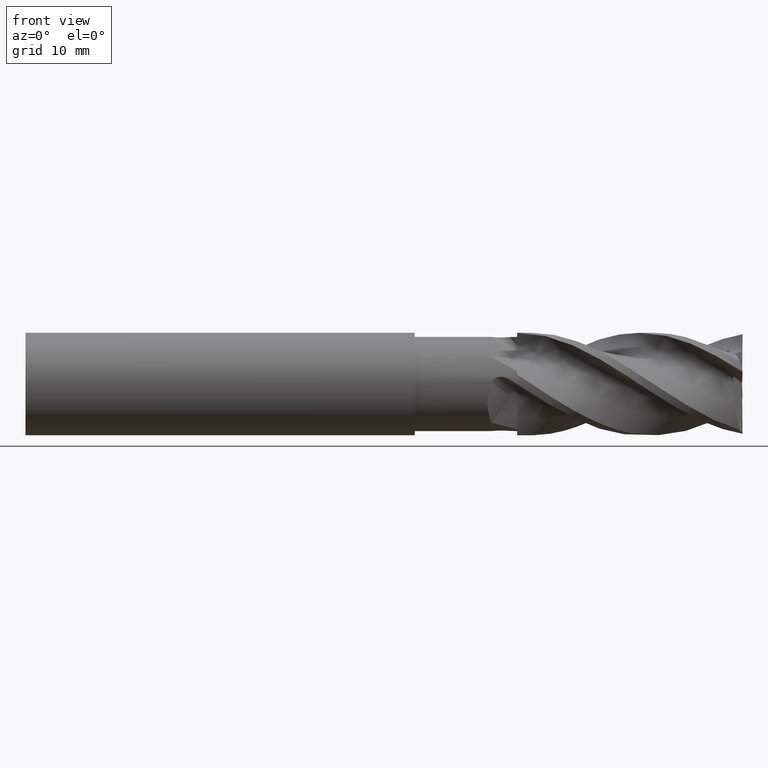
[diagram: clean part render]
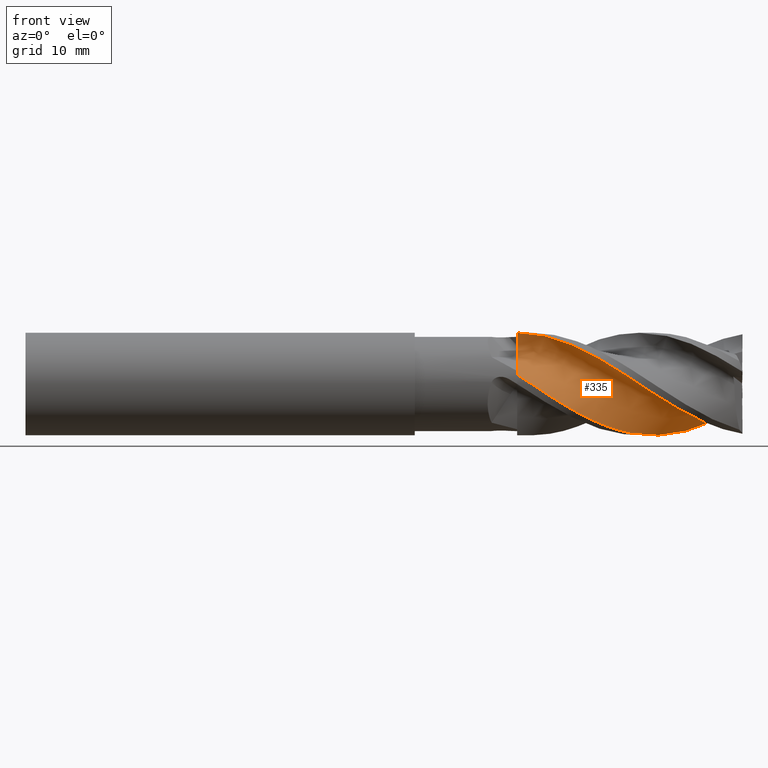
[diagram: same view with one face highlighted and labeled with its STEP entity id]
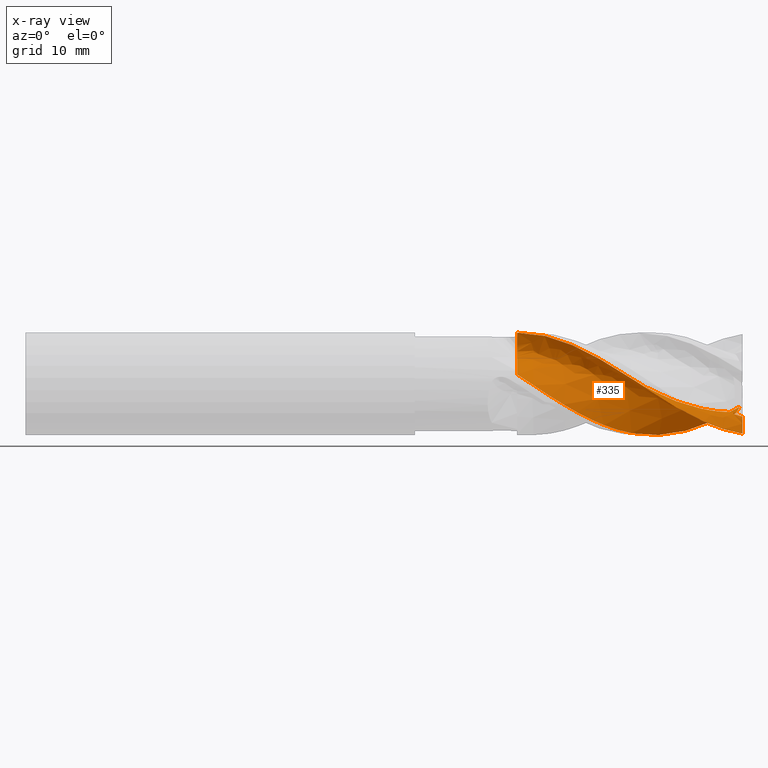
[diagram: x-ray of the same camera — body ghosted, the highlighted face saturated]
A machine part, front view. The second image highlights one B-rep face of the part: STEP entity #335.
The next image is the same camera in x-ray: the body ghosted, the highlighted face saturated — about 0% of this face is hidden behind the body in this view.
In plain terms, the highlighted face is a freeform B-spline surface patch.
Its self-contained STEP definition (entity closure, byte-faithful):
#17 = FACE_OUTER_BOUND ( 'NONE', #6236, .T. ) ;
#157 = EDGE_CURVE ( 'NONE', #3954, #3936, #2111, .T. ) ;
#163 = EDGE_CURVE ( 'NONE', #3817, #3836, #2107, .T. ) ;
#192 = EDGE_CURVE ( 'NONE', #3836, #3816, #284, .T. ) ;
#197 = EDGE_CURVE ( 'NONE', #3816, #3908, #283, .T. ) ;
#210 = EDGE_CURVE ( 'NONE', #3908, #3954, #279, .T. ) ;
#214 = EDGE_CURVE ( 'NONE', #3936, #3932, #234, .T. ) ;
#234 = B_SPLINE_CURVE_WITH_KNOTS ( 'NONE', 3,
 ( #1085, #1091, #1092, #1093, #1094, #1095, #1096, #1097, #1098, #1099, #1100, #1101, #1102, #1103, #1104, #1105, #1106, #1107, #1108, #1109, #1110, #1111, #1112, #1113, #1114, #1115, #1116, #1117, #1118, #1119, #1120, #1121, #1122, #1123, #1124, #1125, #1126, #1127, #1128, #1129, #1130, #1131, #1132, #1133, #1134, #1135 ),
 .UNSPECIFIED., .F., .F.,
 ( 4, 2, 2, 2, 2, 2, 2, 2, 2, 2, 2, 2, 2, 2, 2, 2, 2, 2, 2, 2, 2, 2, 4 ),
 ( 0.0003517343773315553600, 0.001971456536927024000, 0.002781317616724762600, 0.003591178696522501600, 0.005210900856117969100, 0.006830623015713438400, 0.007640484095511176600, 0.008450345175308916400, 0.01007006733490439300, 0.01168978949449987200, 0.01330951165409534900, 0.01411937273389309200, 0.01492923381369083400, 0.01654895597328632700, 0.01816867813288182100, 0.01897853921267957100, 0.01978840029247731800, 0.02140812245207282200, 0.02221798353187057200, 0.02302784461166832200, 0.02464756677126382300, 0.02545742785106157300, 0.02626728893085932300 ),
 .UNSPECIFIED. ) ;
#267 = B_SPLINE_CURVE_WITH_KNOTS ( 'NONE', 3,
 ( #3377, #3390, #3391, #3392 ),
 .UNSPECIFIED., .F., .F.,
 ( 4, 4 ),
 ( 0.0000000000000000000, 1.000000000000000000 ),
 .UNSPECIFIED. ) ;
#279 = B_SPLINE_CURVE_WITH_KNOTS ( 'NONE', 3,
 ( #1076, #1079, #1080, #1081, #1082, #1083 ),
 .UNSPECIFIED., .F., .F.,
 ( 4, 2, 4 ),
 ( 0.002107904890340311300, 0.002580822204645791600, 0.003053739518951271900 ),
 .UNSPECIFIED. ) ;
#283 = B_SPLINE_CURVE_WITH_KNOTS ( 'NONE', 3,
 ( #992, #1003, #1004, #1005, #1006, #1007, #1008, #1009 ),
 .UNSPECIFIED., .F., .F.,
 ( 4, 2, 2, 4 ),
 ( 0.0000000000000000000, 0.0001966645773995174000, 0.0003933291547990348000, 0.0007866583095980685100 ),
 .UNSPECIFIED. ) ;
#284 = B_SPLINE_CURVE_WITH_KNOTS ( 'NONE', 3,
 ( #981, #997, #998, #999 ),
 .UNSPECIFIED., .F., .F.,
 ( 4, 4 ),
 ( 0.0002117796649037390200, 0.001211780483113919500 ),
 .UNSPECIFIED. ) ;
#335 = ADVANCED_FACE ( 'NONE', ( #17 ), #6040, .F. ) ;
#367 = B_SPLINE_CURVE_WITH_KNOTS ( 'NONE', 3,
 ( #4146, #4139, #4147, #4148, #4149, #4150, #4151, #4152, #4153, #4154, #4155, #4156, #4157, #4158, #4159, #4160, #4161, #4162, #4163, #4164, #4165, #4166 ),
 .UNSPECIFIED., .F., .F.,
 ( 4, 2, 2, 2, 2, 2, 2, 2, 2, 2, 4 ),
 ( 0.0001837650418652731700, 0.001687539857454824200, 0.003191314673044375200, 0.003943202080839150300, 0.004131173932787844500, 0.004319145784736537800, 0.004695089488633925400, 0.005071033192531312000, 0.005446976896428699600, 0.005822920600326087100, 0.006198864304223472900 ),
 .UNSPECIFIED. ) ;
#376 = EDGE_CURVE ( 'NONE', #3872, #3975, #267, .T. ) ;
#388 = EDGE_CURVE ( 'NONE', #3975, #3817, #550, .T. ) ;
#489 = EDGE_CURVE ( 'NONE', #3932, #3872, #367, .T. ) ;
#544 = VECTOR ( 'NONE', #3530, 1000.000000000000000 ) ;
#550 = LINE ( 'NONE', #3523, #544 ) ;
#827 = CARTESIAN_POINT ( 'NONE',  ( 29.53202579724229800, 3.661732787132276000, -2.599412507541605200 ) ) ;
#829 = CARTESIAN_POINT ( 'NONE',  ( 29.14819960330811500, -0.5156279703887887100, -2.825648782203691800 ) ) ;
#836 = CARTESIAN_POINT ( 'NONE',  ( 29.22279968464167500, 0.4788628015509080500, -2.826721369743600200 ) ) ;
#837 = CARTESIAN_POINT ( 'NONE',  ( 29.22029806625578600, 0.3683621686598236300, -2.807651915230946900 ) ) ;
#838 = CARTESIAN_POINT ( 'NONE',  ( 29.21956920481822800, 0.3131933655722713400, -2.796428231691191700 ) ) ;
#839 = CARTESIAN_POINT ( 'NONE',  ( 29.21559518722241900, 0.1473982650252503000, -2.768538732105728400 ) ) ;
#840 = CARTESIAN_POINT ( 'NONE',  ( 29.10649564881543200, -0.7184389477193928700, -2.912170294004740700 ) ) ;
#842 = CARTESIAN_POINT ( 'NONE',  ( 29.20896061224108200, 0.03622377020097193600, -2.762835988063497600 ) ) ;
#843 = CARTESIAN_POINT ( 'NONE',  ( 29.70262055360497300, 4.470051940391925900, -2.240231159991868300 ) ) ;
#844 = CARTESIAN_POINT ( 'NONE',  ( 29.17947649600156600, -0.2988489022850536700, -2.776715602531313600 ) ) ;
#845 = CARTESIAN_POINT ( 'NONE',  ( 29.61213824113422200, 4.077486310967127100, -2.439659636211278600 ) ) ;
#849 = CARTESIAN_POINT ( 'NONE',  ( 8.000000000000008900, -3.371984881935656000E-014, 5.000000000000012400 ) ) ;
#850 = CARTESIAN_POINT ( 'NONE',  ( 29.39875094498130900, 2.808896841948894000, -2.825411162788335600 ) ) ;
#852 = CARTESIAN_POINT ( 'NONE',  ( 29.26483299823841100, 1.476304363146129700, -2.935158553078828900 ) ) ;
#853 = CARTESIAN_POINT ( 'NONE',  ( 29.34503719943275300, 2.369362949060010800, -2.892857461720182800 ) ) ;
#854 = CARTESIAN_POINT ( 'NONE',  ( 29.23900850321801300, 1.031922601908282100, -2.910088305722451800 ) ) ;
#855 = CARTESIAN_POINT ( 'NONE',  ( 29.22424012979953300, 0.5341416416342221800, -2.835642189812225500 ) ) ;
#866 = CARTESIAN_POINT ( 'NONE',  ( 8.461864575454862700, -0.3043825993731016900, 5.000000000000014200 ) ) ;
#867 = CARTESIAN_POINT ( 'NONE',  ( 8.922054463733291000, -0.6076564736293985600, 4.972223425805575300 ) ) ;
#868 = CARTESIAN_POINT ( 'NONE',  ( 9.843687160313590900, -1.205053677508986200, 4.862108371930381700 ) ) ;
#869 = CARTESIAN_POINT ( 'NONE',  ( 10.30608116422774000, -1.499670722333178200, 4.779373170893421700 ) ) ;
#870 = CARTESIAN_POINT ( 'NONE',  ( 11.68272013544947000, -2.347167751989157400, 4.456061520259615000 ) ) ;
#871 = CARTESIAN_POINT ( 'NONE',  ( 12.59217818241571500, -2.868169310038100500, 4.140129657312584800 ) ) ;
#872 = CARTESIAN_POINT ( 'NONE',  ( 13.97108916368798300, -3.547529685883755500, 3.536495485699726200 ) ) ;
#873 = CARTESIAN_POINT ( 'NONE',  ( 14.43386782584690300, -3.756907204011370900, 3.313115801036115500 ) ) ;
#874 = CARTESIAN_POINT ( 'NONE',  ( 15.34979826617298200, -4.128147734108597300, 2.837161316527805300 ) ) ;
#875 = CARTESIAN_POINT ( 'NONE',  ( 15.80531174916690400, -4.291270519727669700, 2.583614918138900800 ) ) ;
#876 = CARTESIAN_POINT ( 'NONE',  ( 16.71601393055794600, -4.569499520939866800, 2.051765787521561800 ) ) ;
#877 = CARTESIAN_POINT ( 'NONE',  ( 17.17121222556654200, -4.684606274118006100, 1.773479893612733400 ) ) ;
#878 = CARTESIAN_POINT ( 'NONE',  ( 18.08567430667012500, -4.863661972111706300, 1.198148195169895600 ) ) ;
#879 = CARTESIAN_POINT ( 'NONE',  ( 18.54714702253915300, -4.927761787656241000, 0.8995636430977205200 ) ) ;
#880 = CARTESIAN_POINT ( 'NONE',  ( 19.92806106089716800, -5.036684145877382300, -0.004092693510939836100 ) ) ;
#881 = CARTESIAN_POINT ( 'NONE',  ( 20.83538127513917400, -4.998837118898118000, -0.6105243224921189600 ) ) ;
#882 = CARTESIAN_POINT ( 'NONE',  ( 22.20299102311084000, -4.783573889921260800, -1.485832750369553400 ) ) ;
#883 = CARTESIAN_POINT ( 'NONE',  ( 22.65995323776136100, -4.685344727084984800, -1.771889732561642100 ) ) ;
#884 = CARTESIAN_POINT ( 'NONE',  ( 23.58073770741850700, -4.436724948236133900, -2.325407527656068000 ) ) ;
#885 = CARTESIAN_POINT ( 'NONE',  ( 24.04214820329081800, -4.286742064648464600, -2.591257220826266700 ) ) ;
#886 = CARTESIAN_POINT ( 'NONE',  ( 25.41362563098745400, -3.773490698048687500, -3.335244219691120700 ) ) ;
#887 = CARTESIAN_POINT ( 'NONE',  ( 26.31981726979738300, -3.344846162727712600, -3.765143692553069200 ) ) ;
#888 = CARTESIAN_POINT ( 'NONE',  ( 27.69375705382108800, -2.600812016685304200, -4.280987336273847500 ) ) ;
#889 = CARTESIAN_POINT ( 'NONE',  ( 28.15592773137319300, -2.334728643893836600, -4.431856551753244700 ) ) ;
#890 = CARTESIAN_POINT ( 'NONE',  ( 29.07784489066638000, -1.780926359666860300, -4.681945283467143800 ) ) ;
#891 = CARTESIAN_POINT ( 'NONE',  ( 29.53811105400377500, -1.493092354050963500, -4.781558524981798900 ) ) ;
#892 = CARTESIAN_POINT ( 'NONE',  ( 30.00000000000001400, -1.197605160818747500, -4.854455878755151100 ) ) ;
#981 = CARTESIAN_POINT ( 'NONE',  ( 30.00000000000001400, -1.197605160818747500, -4.854455878755151100 ) ) ;
#992 = CARTESIAN_POINT ( 'NONE',  ( 30.00000000000000000, -0.9568265954257032500, -3.883874723299680600 ) ) ;
#997 = CARTESIAN_POINT ( 'NONE',  ( 30.00000000000001400, -1.117319388118230000, -4.530935419044469700 ) ) ;
#998 = CARTESIAN_POINT ( 'NONE',  ( 30.00000000000002100, -1.037059909437045800, -4.207408835632827900 ) ) ;
#999 = CARTESIAN_POINT ( 'NONE',  ( 30.00000000000000000, -0.9568265954257032500, -3.883874723299680600 ) ) ;
#1003 = CARTESIAN_POINT ( 'NONE',  ( 29.99942241917573300, -0.9411936024851828000, -3.819562977336174100 ) ) ;
#1004 = CARTESIAN_POINT ( 'NONE',  ( 29.99884407677340500, -0.9261632584989054600, -3.755012776181186200 ) ) ;
#1005 = CARTESIAN_POINT ( 'NONE',  ( 29.99769067858569100, -0.8935025274083511200, -3.626941154839270700 ) ) ;
#1006 = CARTESIAN_POINT ( 'NONE',  ( 29.99712138532720100, -0.8712077054301919900, -3.565265352141156800 ) ) ;
#1007 = CARTESIAN_POINT ( 'NONE',  ( 29.99543598172812900, -0.7883212297197270700, -3.386569573208681600 ) ) ;
#1008 = CARTESIAN_POINT ( 'NONE',  ( 29.99432084400001100, -0.7097979021696738700, -3.273951488216468000 ) ) ;
#1009 = CARTESIAN_POINT ( 'NONE',  ( 29.99334330137063300, -0.6175835380554208800, -3.177761828581082700 ) ) ;
#1076 = CARTESIAN_POINT ( 'NONE',  ( 29.99334330137063300, -0.6175835380554208800, -3.177761828581082700 ) ) ;
#1079 = CARTESIAN_POINT ( 'NONE',  ( 29.85027689470425100, -0.6302829989809688400, -3.116251548896186400 ) ) ;
#1080 = CARTESIAN_POINT ( 'NONE',  ( 29.70229058075442900, -0.6461268331281726500, -3.066780212829367500 ) ) ;
#1081 = CARTESIAN_POINT ( 'NONE',  ( 29.40595697189806400, -0.6804249385796952200, -2.981160866803722200 ) ) ;
#1082 = CARTESIAN_POINT ( 'NONE',  ( 29.25657559087708000, -0.6990169778810044800, -2.944808599188861700 ) ) ;
#1083 = CARTESIAN_POINT ( 'NONE',  ( 29.10649564881543200, -0.7184389477193928700, -2.912170294004740700 ) ) ;
#1085 = CARTESIAN_POINT ( 'NONE',  ( 29.70262055360497300, 4.470051940391925900, -2.240231159991868300 ) ) ;
#1091 = CARTESIAN_POINT ( 'NONE',  ( 29.24761314425728300, 4.335948932697840000, -2.507813997183340000 ) ) ;
#1092 = CARTESIAN_POINT ( 'NONE',  ( 28.79898912238062200, 4.175907958121836600, -2.766186038056455100 ) ) ;
#1093 = CARTESIAN_POINT ( 'NONE',  ( 28.12504294792146500, 3.905387402832711400, -3.125771481051779200 ) ) ;
#1094 = CARTESIAN_POINT ( 'NONE',  ( 27.90020835360591500, 3.810216698315571600, -3.241003418133894300 ) ) ;
#1095 = CARTESIAN_POINT ( 'NONE',  ( 27.44837079236631900, 3.612078053737106700, -3.460454677956232000 ) ) ;
#1096 = CARTESIAN_POINT ( 'NONE',  ( 27.22046573787833200, 3.510158961587681100, -3.563747629633091200 ) ) ;
#1097 = CARTESIAN_POINT ( 'NONE',  ( 26.53860979875888800, 3.187750359161404000, -3.863198164860950800 ) ) ;
#1098 = CARTESIAN_POINT ( 'NONE',  ( 26.08625958248842700, 2.948179551604636700, -4.049741124438545700 ) ) ;
#1099 = CARTESIAN_POINT ( 'NONE',  ( 25.17970728134009000, 2.436546462801039600, -4.376689065729964400 ) ) ;
#1100 = CARTESIAN_POINT ( 'NONE',  ( 24.73016973765081200, 2.167636822457107200, -4.515211826651996500 ) ) ;
#1101 = CARTESIAN_POINT ( 'NONE',  ( 24.05050286752110700, 1.761130093702830000, -4.681865824802849300 ) ) ;
#1102 = CARTESIAN_POINT ( 'NONE',  ( 23.82309570815909100, 1.625111835638603200, -4.730824382099791100 ) ) ;
#1103 = CARTESIAN_POINT ( 'NONE',  ( 23.37217736477623800, 1.343856929157526400, -4.818271097246173100 ) ) ;
#1104 = CARTESIAN_POINT ( 'NONE',  ( 23.14777720721490100, 1.199882456250143600, -4.856196248305790800 ) ) ;
#1105 = CARTESIAN_POINT ( 'NONE',  ( 22.47527461795936100, 0.7613602198664432000, -4.950734315140426400 ) ) ;
#1106 = CARTESIAN_POINT ( 'NONE',  ( 22.02786824595716900, 0.4601173499505135100, -4.987761707469058300 ) ) ;
#1107 = CARTESIAN_POINT ( 'NONE',  ( 21.12045886986742000, -0.1378187101107820300, -5.007043122379070800 ) ) ;
#1108 = CARTESIAN_POINT ( 'NONE',  ( 20.65758738936245800, -0.4303519144070425700, -4.990351430592168600 ) ) ;
#1109 = CARTESIAN_POINT ( 'NONE',  ( 19.75310773932774900, -1.020069984137365300, -4.903903281928498900 ) ) ;
#1110 = CARTESIAN_POINT ( 'NONE',  ( 19.30635203298269100, -1.314312046518187700, -4.833410387285445300 ) ) ;
#1111 = CARTESIAN_POINT ( 'NONE',  ( 18.63408142059168800, -1.738999959494917900, -4.690223573856816800 ) ) ;
#1112 = CARTESIAN_POINT ( 'NONE',  ( 18.40961925141818200, -1.877786810146493200, -4.636336543735889200 ) ) ;
#1113 = CARTESIAN_POINT ( 'NONE',  ( 17.95820744396802800, -2.147481972114432500, -4.517745126784434200 ) ) ;
#1114 = CARTESIAN_POINT ( 'NONE',  ( 17.73037837373991400, -2.277203116929114000, -4.453758495477012000 ) ) ;
#1115 = CARTESIAN_POINT ( 'NONE',  ( 17.04973137020134600, -2.663871413022870400, -4.241493154777026000 ) ) ;
#1116 = CARTESIAN_POINT ( 'NONE',  ( 16.59660447856522900, -2.917728391303814100, -4.071728183786157200 ) ) ;
#1117 = CARTESIAN_POINT ( 'NONE',  ( 15.69201377842810500, -3.388792872452818500, -3.688928331598738000 ) ) ;
#1118 = CARTESIAN_POINT ( 'NONE',  ( 15.24292448220645100, -3.604493661132237600, -3.477468488572880400 ) ) ;
#1119 = CARTESIAN_POINT ( 'NONE',  ( 14.56283012907767500, -3.889548092664613300, -3.145267245464072700 ) ) ;
#1120 = CARTESIAN_POINT ( 'NONE',  ( 14.33563046441807700, -3.978912424228823400, -3.031485073546563000 ) ) ;
#1121 = CARTESIAN_POINT ( 'NONE',  ( 13.88464188260380500, -4.150277067048135900, -2.792283312551294900 ) ) ;
#1122 = CARTESIAN_POINT ( 'NONE',  ( 13.66004469311948500, -4.231443182424797600, -2.667799168494436700 ) ) ;
#1123 = CARTESIAN_POINT ( 'NONE',  ( 12.98664249912885900, -4.458774149756324700, -2.282189369771909800 ) ) ;
#1124 = CARTESIAN_POINT ( 'NONE',  ( 12.53822369664005600, -4.588503973317751100, -2.008723230005581500 ) ) ;
#1125 = CARTESIAN_POINT ( 'NONE',  ( 11.85632511285503400, -4.743473299705435400, -1.588016211176986700 ) ) ;
#1126 = CARTESIAN_POINT ( 'NONE',  ( 11.62647733790183200, -4.788422657927847900, -1.446633257882447900 ) ) ;
#1127 = CARTESIAN_POINT ( 'NONE',  ( 11.16855281787598700, -4.865346171773704300, -1.161957814455995200 ) ) ;
#1128 = CARTESIAN_POINT ( 'NONE',  ( 10.94161111878101500, -4.897957804298026300, -1.016160452747566500 ) ) ;
#1129 = CARTESIAN_POINT ( 'NONE',  ( 10.26423591096618200, -4.976222020854446100, -0.5722807639696090300 ) ) ;
#1130 = CARTESIAN_POINT ( 'NONE',  ( 9.817288185391374700, -5.001904955811579800, -0.2676314969799499200 ) ) ;
#1131 = CARTESIAN_POINT ( 'NONE',  ( 9.141787467861465900, -4.998879256825858900, 0.1840546847089367700 ) ) ;
#1132 = CARTESIAN_POINT ( 'NONE',  ( 8.915758711235430000, -4.991042768886047500, 0.3337060176299402300 ) ) ;
#1133 = CARTESIAN_POINT ( 'NONE',  ( 8.459996292622816900, -4.962597282450115400, 0.6280890376935720500 ) ) ;
#1134 = CARTESIAN_POINT ( 'NONE',  ( 8.229496249998272000, -4.942317576961959200, 0.7716230165415882700 ) ) ;
#1135 = CARTESIAN_POINT ( 'NONE',  ( 8.000000000000007100, -4.915170262287604800, 0.9171157466338413200 ) ) ;
#2107 = B_SPLINE_CURVE_WITH_KNOTS ( 'NONE', 3,
 ( #849, #866, #867, #868, #869, #870, #871, #872, #873, #874, #875, #876, #877, #878, #879, #880, #881, #882, #883, #884, #885, #886, #887, #888, #889, #890, #891, #892 ),
 .UNSPECIFIED., .F., .F.,
 ( 4, 2, 2, 2, 2, 2, 2, 2, 2, 2, 2, 2, 2, 4 ),
 ( 0.0000000000000000000, 0.001655086336224903700, 0.003310172672449807300, 0.006620345344899612000, 0.008275431681124514200, 0.009930518017349414600, 0.01158560435357431800, 0.01324069068979922100, 0.01655086336224902500, 0.01820594969847392400, 0.01986103603469881900, 0.02317120870714860900, 0.02482629504337349400, 0.02648138137959838200 ),
 .UNSPECIFIED. ) ;
#2111 = B_SPLINE_CURVE_WITH_KNOTS ( 'NONE', 3,
 ( #840, #829, #844, #842, #839, #838, #837, #836, #855, #854, #852, #853, #850, #827, #845, #843 ),
 .UNSPECIFIED., .F., .F.,
 ( 4, 2, 2, 2, 2, 2, 2, 4 ),
 ( 0.002293712214768969800, 0.002953628090643745400, 0.003283586028581133800, 0.003448564997549827800, 0.003613543966518521800, 0.004933375718268073800, 0.006253207470017624900, 0.007573039221767177700 ),
 .UNSPECIFIED. ) ;
#3377 = CARTESIAN_POINT ( 'NONE',  ( 8.000000000000008900, -2.490271337872778900E-014, 3.812500000000007100 ) ) ;
#3390 = CARTESIAN_POINT ( 'NONE',  ( 8.000000000000007100, -2.746645503629944700E-014, 4.076975000000007100 ) ) ;
#3391 = CARTESIAN_POINT ( 'NONE',  ( 8.000000000000007100, -2.977941967093519100E-014, 4.341450000000007100 ) ) ;
#3392 = CARTESIAN_POINT ( 'NONE',  ( 8.000000000000007100, -3.003476571920607700E-014, 4.605184375000007400 ) ) ;
#3523 = CARTESIAN_POINT ( 'NONE',  ( 8.000000000000007100, -3.509248205846706300E-014, 5.000000000000013300 ) ) ;
#3530 = DIRECTION ( 'NONE',  ( -1.460819769243619800E-015, -8.638014195045787200E-015, 1.000000000000000000 ) ) ;
#3816 = VERTEX_POINT ( 'NONE', #4249 ) ;
#3817 = VERTEX_POINT ( 'NONE', #4250 ) ;
#3836 = VERTEX_POINT ( 'NONE', #4253 ) ;
#3872 = VERTEX_POINT ( 'NONE', #4266 ) ;
#3908 = VERTEX_POINT ( 'NONE', #4280 ) ;
#3932 = VERTEX_POINT ( 'NONE', #4294 ) ;
#3936 = VERTEX_POINT ( 'NONE', #4298 ) ;
#3954 = VERTEX_POINT ( 'NONE', #4314 ) ;
#3975 = VERTEX_POINT ( 'NONE', #4334 ) ;
#4139 = CARTESIAN_POINT ( 'NONE',  ( 8.000000000000005300, -4.517219216461120000, 1.223269011816805300 ) ) ;
#4146 = CARTESIAN_POINT ( 'NONE',  ( 8.000000000000007100, -4.915170262287604800, 0.9171157466338413200 ) ) ;
#4147 = CARTESIAN_POINT ( 'NONE',  ( 8.000000000000007100, -4.093733954637237100, 1.495713899352657100 ) ) ;
#4148 = CARTESIAN_POINT ( 'NONE',  ( 8.000000000000007100, -3.203868303228131900, 1.959199801611292100 ) ) ;
#4149 = CARTESIAN_POINT ( 'NONE',  ( 8.000000000000008900, -2.736742149658770300, 2.150278322470738200 ) ) ;
#4150 = CARTESIAN_POINT ( 'NONE',  ( 8.000000000000010700, -2.017399835410226000, 2.366496595888560000 ) ) ;
#4151 = CARTESIAN_POINT ( 'NONE',  ( 8.000000000000003600, -1.774654976711754100, 2.426932748297234700 ) ) ;
#4152 = CARTESIAN_POINT ( 'NONE',  ( 8.000000000000005300, -1.467491298316863800, 2.487824236806120700 ) ) ;
#4153 = CARTESIAN_POINT ( 'NONE',  ( 8.000000000000012400, -1.405871725374866500, 2.499269036706991200 ) ) ;
#4154 = CARTESIAN_POINT ( 'NONE',  ( 8.000000000000012400, -1.282257373887331300, 2.520685630103916400 ) ) ;
#4155 = CARTESIAN_POINT ( 'NONE',  ( 8.000000000000008900, -1.219864828679114500, 2.529095845531263100 ) ) ;
#4156 = CARTESIAN_POINT ( 'NONE',  ( 8.000000000000010700, -1.035563783676620300, 2.565619597168007400 ) ) ;
#4157 = CARTESIAN_POINT ( 'NONE',  ( 8.000000000000026600, -0.9173418027969140200, 2.605292712975181900 ) ) ;
#4158 = CARTESIAN_POINT ( 'NONE',  ( 8.000000000000028400, -0.6945835065094229100, 2.709170252149508700 ) ) ;
#4159 = CARTESIAN_POINT ( 'NONE',  ( 8.000000000000007100, -0.5879592042862560300, 2.774494266971742300 ) ) ;
#4160 = CARTESIAN_POINT ( 'NONE',  ( 8.000000000000007100, -0.3940004812116818500, 2.929914475631640900 ) ) ;
#4161 = CARTESIAN_POINT ( 'NONE',  ( 8.000000000000001800, -0.3083607473126890900, 3.018791532162586700 ) ) ;
#4162 = CARTESIAN_POINT ( 'NONE',  ( 8.000000000000003600, -0.1622312858379605600, 3.221312677037593300 ) ) ;
#4163 = CARTESIAN_POINT ( 'NONE',  ( 7.999999999999890800, -0.1042584190845283800, 3.331033691123953800 ) ) ;
#4164 = CARTESIAN_POINT ( 'NONE',  ( 7.999999999999892500, -0.02285456419640871300, 3.564644117809528300 ) ) ;
#4165 = CARTESIAN_POINT ( 'NONE',  ( 8.000000000000016000, -2.383889526752503500E-014, 3.689331759467804800 ) ) ;
#4166 = CARTESIAN_POINT ( 'NONE',  ( 8.000000000000008900, -2.490271337872778900E-014, 3.812500000000007100 ) ) ;
#4249 = CARTESIAN_POINT ( 'NONE',  ( 30.00000000000000000, -0.9568265954257032500, -3.883874723299680600 ) ) ;
#4250 = CARTESIAN_POINT ( 'NONE',  ( 8.000000000000008900, -3.371984881935656000E-014, 5.000000000000012400 ) ) ;
#4253 = CARTESIAN_POINT ( 'NONE',  ( 30.00000000000001400, -1.197605160818747500, -4.854455878755151100 ) ) ;
#4266 = CARTESIAN_POINT ( 'NONE',  ( 8.000000000000008900, -2.490271337872778900E-014, 3.812500000000007100 ) ) ;
#4280 = CARTESIAN_POINT ( 'NONE',  ( 29.99334330137063300, -0.6175835380554208800, -3.177761828581082700 ) ) ;
#4294 = CARTESIAN_POINT ( 'NONE',  ( 8.000000000000007100, -4.915170262287604800, 0.9171157466338413200 ) ) ;
#4298 = CARTESIAN_POINT ( 'NONE',  ( 29.70262055360497300, 4.470051940391925900, -2.240231159991868300 ) ) ;
#4314 = CARTESIAN_POINT ( 'NONE',  ( 29.10649564881543200, -0.7184389477193928700, -2.912170294004740700 ) ) ;
#4334 = CARTESIAN_POINT ( 'NONE',  ( 8.000000000000007100, -3.003476571920607700E-014, 4.605184375000007400 ) ) ;
#5025 = CARTESIAN_POINT ( 'NONE',  ( 2.497236606767391500, -8.349826048373653700, 2.624999999999917400 ) ) ;
#5026 = CARTESIAN_POINT ( 'NONE',  ( 3.541882663464973800, -8.719116467486085000, 1.502924467322602800 ) ) ;
#5027 = CARTESIAN_POINT ( 'NONE',  ( 4.598541316228777400, -8.820526880447559400, 0.2266131530954994500 ) ) ;
#5028 = CARTESIAN_POINT ( 'NONE',  ( 6.679518933751527500, -8.601858579920755000, -2.113425989179443600 ) ) ;
#5029 = CARTESIAN_POINT ( 'NONE',  ( 7.740571628899569800, -8.164905665473448000, -3.344023404313711400 ) ) ;
#5030 = CARTESIAN_POINT ( 'NONE',  ( 9.823921780511591700, -7.005987283238222400, -5.405520628560976700 ) ) ;
#5031 = CARTESIAN_POINT ( 'NONE',  ( 10.88389533819234100, -6.129722657167849100, -6.347033754235878800 ) ) ;
#5032 = CARTESIAN_POINT ( 'NONE',  ( 12.96586236425668500, -4.248571848031806700, -7.767828352515546300 ) ) ;
#5033 = CARTESIAN_POINT ( 'NONE',  ( 14.02641115013602600, -3.055856756920324100, -8.277281560983372100 ) ) ;
#5034 = CARTESIAN_POINT ( 'NONE',  ( 16.10921928026089800, -0.7580750789374589600, -8.819092201096335500 ) ) ;
#5035 = CARTESIAN_POINT ( 'NONE',  ( 17.16966422375315600, 0.5342239162594755200, -8.807312020332261700 ) ) ;
#5036 = CARTESIAN_POINT ( 'NONE',  ( 19.25169529331054000, 2.854176476569129800, -8.379677301760164500 ) ) ;
#5037 = CARTESIAN_POINT ( 'NONE',  ( 20.31205257926652100, 4.033643586534394900, -7.847532637676629000 ) ) ;
#5038 = CARTESIAN_POINT ( 'NONE',  ( 22.39497890363800200, 5.986156940679570000, -6.521295547684590400 ) ) ;
#5039 = CARTESIAN_POINT ( 'NONE',  ( 23.45519485545921200, 6.851268805014092000, -5.559984064858681100 ) ) ;
#5040 = CARTESIAN_POINT ( 'NONE',  ( 25.53756933966261000, 8.104523083756669500, -3.560725150821313800 ) ) ;
#5041 = CARTESIAN_POINT ( 'NONE',  ( 26.59777796516299700, 8.509693183807490500, -2.332545199655347000 ) ) ;
#5042 = CARTESIAN_POINT ( 'NONE',  ( 28.68068363359541800, 8.852278939534304700, 0.002820773006803481800 ) ) ;
#5043 = CARTESIAN_POINT ( 'NONE',  ( 29.74106214240002200, 8.728270924162052000, 1.290764717971759200 ) ) ;
#5044 = CARTESIAN_POINT ( 'NONE',  ( 31.82316063224138600, 8.102442512809119500, 3.565211801052786000 ) ) ;
#5045 = CARTESIAN_POINT ( 'NONE',  ( 32.88353789240049000, 7.472330145036917100, 4.693744818611602200 ) ) ;
#5046 = CARTESIAN_POINT ( 'NONE',  ( 34.96616352546193700, 5.982294068198599200, 6.525113611197392400 ) ) ;
#5047 = CARTESIAN_POINT ( 'NONE',  ( 36.02690980323568900, 4.946217380715230800, 7.304502133801385400 ) ) ;
#5048 = CARTESIAN_POINT ( 'NONE',  ( 38.10929593523016500, 2.849250397291685800, 8.380778515282976600 ) ) ;
#5049 = CARTESIAN_POINT ( 'NONE',  ( 39.16877702518171100, 1.597655650451286400, 8.681651632181180700 ) ) ;
#5050 = CARTESIAN_POINT ( 'NONE',  ( 41.25135270314132200, -0.7639124995096142600, 8.819792284976621500 ) ) ;
#5051 = CARTESIAN_POINT ( 'NONE',  ( 42.31339211846616200, -2.044981641336125900, 8.576424696725409200 ) ) ;
#5052 = CARTESIAN_POINT ( 'NONE',  ( 44.39544166062997700, -4.249604932807089100, 7.764774613449661800 ) ) ;
#5053 = CARTESIAN_POINT ( 'NONE',  ( 45.45345895079158500, -5.315207983421905700, 7.048945288234783400 ) ) ;
#5054 = CARTESIAN_POINT ( 'NONE',  ( 46.49424705905890000, -6.164202128770288200, 6.229754949408461000 ) ) ;
#5055 = CARTESIAN_POINT ( 'NONE',  ( 3.803255192018409200, -6.368089378357965700, 2.624999999999936900 ) ) ;
#5056 = CARTESIAN_POINT ( 'NONE',  ( 4.846911734406417000, -6.736975981796559800, 1.769902163577514100 ) ) ;
#5057 = CARTESIAN_POINT ( 'NONE',  ( 5.904269479408234200, -6.898572954904358000, 0.7780897773693644700 ) ) ;
#5058 = CARTESIAN_POINT ( 'NONE',  ( 7.985357327257846200, -6.891924087401338100, -1.077147677704370900 ) ) ;
#5059 = CARTESIAN_POINT ( 'NONE',  ( 9.046543469046668000, -6.627600319272446900, -2.065272657246505900 ) ) ;
#5060 = CARTESIAN_POINT ( 'NONE',  ( 11.12978816152478100, -5.861315172234834700, -3.765854489207788100 ) ) ;
#5061 = CARTESIAN_POINT ( 'NONE',  ( 12.18971704977389700, -5.236856657442420000, -4.557869000754364700 ) ) ;
#5062 = CARTESIAN_POINT ( 'NONE',  ( 14.27171841217262700, -3.858260303247583100, -5.806732612734956300 ) ) ;
#5063 = CARTESIAN_POINT ( 'NONE',  ( 15.33230600612088100, -2.958815655751571200, -6.280038427643202000 ) ) ;
#5064 = CARTESIAN_POINT ( 'NONE',  ( 17.41507784805940400, -1.191240841137009000, -6.866952678473748700 ) ) ;
#5065 = CARTESIAN_POINT ( 'NONE',  ( 18.47552937864905300, -0.1808178914043869500, -6.939946656470848300 ) ) ;
#5066 = CARTESIAN_POINT ( 'NONE',  ( 20.55755354514459700, 1.672320537926464300, -6.766735368226530800 ) ) ;
#5067 = CARTESIAN_POINT ( 'NONE',  ( 21.61792826425290300, 2.627512096292247800, -6.425844853309874900 ) ) ;
#5068 = CARTESIAN_POINT ( 'NONE',  ( 23.70083731685175400, 4.254916894586243000, -5.520669574393692400 ) ) ;
#5069 = CARTESIAN_POINT ( 'NONE',  ( 24.76106722166123900, 4.991822388814568100, -4.824578674733580800 ) ) ;
#5070 = CARTESIAN_POINT ( 'NONE',  ( 26.84342685747988700, 6.116981968267888100, -3.341450991998709000 ) ) ;
#5071 = CARTESIAN_POINT ( 'NONE',  ( 27.90365117429859200, 6.511503149509287900, -2.407660973989263400 ) ) ;
#5072 = CARTESIAN_POINT ( 'NONE',  ( 29.98654447210338200, 6.944597487806497300, -0.5965056638792215500 ) ) ;
#5073 = CARTESIAN_POINT ( 'NONE',  ( 31.04693537843220200, 6.929443884261319300, 0.4175251824350921800 ) ) ;
#5074 = CARTESIAN_POINT ( 'NONE',  ( 33.12901096810734500, 6.597300137327010800, 2.248806346251649700 ) ) ;
#5075 = CARTESIAN_POINT ( 'NONE',  ( 34.18941087487083800, 6.176737893601322900, 3.170628157267950900 ) ) ;
#5076 = CARTESIAN_POINT ( 'NONE',  ( 36.27204352153208300, 5.134293943333935000, 4.714221094244000400 ) ) ;
#5077 = CARTESIAN_POINT ( 'NONE',  ( 37.33278174770907000, 4.374368291374312700, 5.388468025512554300 ) ) ;
#5078 = CARTESIAN_POINT ( 'NONE',  ( 39.41510277312386300, 2.802027447822541100, 6.381746487986432300 ) ) ;
#5079 = CARTESIAN_POINT ( 'NONE',  ( 40.47465604339112800, 1.842917967619593300, 6.697062838285617700 ) ) ;
#5080 = CARTESIAN_POINT ( 'NONE',  ( 42.55731002461323700, -0.002827585112211020500, 6.970657656186341800 ) ) ;
#5081 = CARTESIAN_POINT ( 'NONE',  ( 43.61924876361986500, -1.017942624674581100, 6.860938789440438300 ) ) ;
#5082 = CARTESIAN_POINT ( 'NONE',  ( 45.70115419636281500, -2.808471307507113900, 6.378698120883828300 ) ) ;
#5083 = CARTESIAN_POINT ( 'NONE',  ( 46.76004710098467100, -3.688034831729956100, 5.887093590295587700 ) ) ;
#5084 = CARTESIAN_POINT ( 'NONE',  ( 47.80026219402074600, -4.412393197238441400, 5.303226639553996000 ) ) ;
#5085 = CARTESIAN_POINT ( 'NONE',  ( 5.109273777269425700, -4.386352708342278600, 2.624999999999956900 ) ) ;
#5086 = CARTESIAN_POINT ( 'NONE',  ( 6.151693004520298700, -4.754748006404010000, 2.036605511651305100 ) ) ;
#5087 = CARTESIAN_POINT ( 'NONE',  ( 7.209997642586601300, -4.976619029362789900, 1.329566401643365900 ) ) ;
#5088 = CARTESIAN_POINT ( 'NONE',  ( 9.291195720765253800, -5.181989594880288800, -0.04086936622943579400 ) ) ;
#5089 = CARTESIAN_POINT ( 'NONE',  ( 10.35251530919485700, -5.090294973072534600, -0.7865219101806582000 ) ) ;
#5090 = CARTESIAN_POINT ( 'NONE',  ( 12.43565454253688300, -4.716643061230358900, -2.126188349853237900 ) ) ;
#5091 = CARTESIAN_POINT ( 'NONE',  ( 13.49553876135545100, -4.343990657717531800, -2.768704247272850200 ) ) ;
#5092 = CARTESIAN_POINT ( 'NONE',  ( 15.57757446008856800, -3.467948758462815500, -3.845636872954367300 ) ) ;
#5093 = CARTESIAN_POINT ( 'NONE',  ( 16.63820086211008600, -2.861774554583362400, -4.282795294303031900 ) ) ;
#5094 = CARTESIAN_POINT ( 'NONE',  ( 18.72093641585356100, -1.624406603336016700, -4.914813155851161000 ) ) ;
#5095 = CARTESIAN_POINT ( 'NONE',  ( 19.78139453354712500, -0.8958596990690658200, -5.072581292609978500 ) ) ;
#5096 = CARTESIAN_POINT ( 'NONE',  ( 21.86341179697646500, 0.4904645992846150000, -5.153793434692352600 ) ) ;
#5097 = CARTESIAN_POINT ( 'NONE',  ( 22.92380394923928200, 1.221380606049964800, -5.004157068942578900 ) ) ;
#5098 = CARTESIAN_POINT ( 'NONE',  ( 25.00669573006550200, 2.523676848493051400, -4.520043601103339800 ) ) ;
#5099 = CARTESIAN_POINT ( 'NONE',  ( 26.06693958785890800, 3.132375972615587800, -4.089173284608208700 ) ) ;
#5100 = CARTESIAN_POINT ( 'NONE',  ( 28.14928437530151200, 4.129440852778563100, -3.122176833176375500 ) ) ;
#5101 = CARTESIAN_POINT ( 'NONE',  ( 29.20952438343200100, 4.513313115214896400, -2.482776748323724200 ) ) ;
#5102 = CARTESIAN_POINT ( 'NONE',  ( 31.29240531061351800, 5.036916036074885000, -1.195832100764703500 ) ) ;
#5103 = CARTESIAN_POINT ( 'NONE',  ( 32.35280861446221200, 5.130616844359496800, -0.4557143531015744300 ) ) ;
#5104 = CARTESIAN_POINT ( 'NONE',  ( 34.43486130397548100, 5.092157761845991000, 0.9324008914505140800 ) ) ;
#5105 = CARTESIAN_POINT ( 'NONE',  ( 35.49528385734988900, 4.881145642164640600, 1.647511495924298200 ) ) ;
#5106 = CARTESIAN_POINT ( 'NONE',  ( 37.57792351759352600, 4.286293818470361400, 2.903328577290606100 ) ) ;
#5107 = CARTESIAN_POINT ( 'NONE',  ( 38.63865369217374700, 3.802519202033392900, 3.472433917224268200 ) ) ;
#5108 = CARTESIAN_POINT ( 'NONE',  ( 40.72090961102625800, 2.754804498353396400, 4.382714460689345300 ) ) ;
#5109 = CARTESIAN_POINT ( 'NONE',  ( 41.78053506160489400, 2.088180284787085400, 4.712474044389510100 ) ) ;
#5110 = CARTESIAN_POINT ( 'NONE',  ( 43.86326734608079600, 0.7582573292860088600, 5.121523027396605700 ) ) ;
#5111 = CARTESIAN_POINT ( 'NONE',  ( 44.92510540878664200, 0.009096391984243779000, 5.145452882158188000 ) ) ;
#5112 = CARTESIAN_POINT ( 'NONE',  ( 47.00686673208259900, -1.367337682204415900, 4.992621628315275100 ) ) ;
#5113 = CARTESIAN_POINT ( 'NONE',  ( 48.06662557744596100, -2.060681262569087100, 4.725575851125450200 ) ) ;
#5114 = CARTESIAN_POINT ( 'NONE',  ( 49.10627732898259300, -2.660584265706594100, 4.376698329699532800 ) ) ;
#5115 = CARTESIAN_POINT ( 'NONE',  ( 6.725710524031506500, -1.933591306632524100, 2.624999999999980900 ) ) ;
#5116 = CARTESIAN_POINT ( 'NONE',  ( 7.766459880611047400, -2.301329750662966000, 2.365985218971571300 ) ) ;
#5117 = CARTESIAN_POINT ( 'NONE',  ( 8.826074938943769200, -2.597849702559348100, 2.012119537198255400 ) ) ;
#5118 = CARTESIAN_POINT ( 'NONE',  ( 10.90740944730378300, -3.065633074781899800, 1.241714481702140200 ) ) ;
#5119 = CARTESIAN_POINT ( 'NONE',  ( 11.96889420034539800, -3.187598579118304400, 0.7961659021142060100 ) ) ;
#5120 = CARTESIAN_POINT ( 'NONE',  ( 14.05190290873103700, -3.299902071390040000, -0.09680176224650277600 ) ) ;
#5121 = CARTESIAN_POINT ( 'NONE',  ( 15.11173184096259800, -3.238905762151994300, -0.5542857954997615400 ) ) ;
#5122 = CARTESIAN_POINT ( 'NONE',  ( 17.19381003718512300, -2.984866870653917600, -1.418422395687768600 ) ) ;
#5123 = CARTESIAN_POINT ( 'NONE',  ( 18.25448447128922400, -2.741668452230178900, -1.810841809560124600 ) ) ;
#5124 = CARTESIAN_POINT ( 'NONE',  ( 20.33717511176372700, -2.160528419185882200, -2.498683634565455100 ) ) ;
#5125 = CARTESIAN_POINT ( 'NONE',  ( 21.39764138219817400, -1.780854649702309400, -2.761375289981561100 ) ) ;
#5126 = CARTESIAN_POINT ( 'NONE',  ( 23.47965010182384300, -0.9722981746712730000, -3.157482937123097700 ) ) ;
#5127 = CARTESIAN_POINT ( 'NONE',  ( 24.54006383080566100, -0.5189641618383473700, -3.244558543298115400 ) ) ;
#5128 = CARTESIAN_POINT ( 'NONE',  ( 26.62293423464636500, 0.3809508110732253100, -3.281586039121303000 ) ) ;
#5129 = CARTESIAN_POINT ( 'NONE',  ( 27.68319536181303800, 0.8309711153477935500, -3.178974678103246600 ) ) ;
#5130 = CARTESIAN_POINT ( 'NONE',  ( 29.76552177167547000, 1.669495388709736600, -2.850784977088710800 ) ) ;
#5131 = CARTESIAN_POINT ( 'NONE',  ( 30.82578120067315600, 2.040187667441848000, -2.575746250646758100 ) ) ;
#5132 = CARTESIAN_POINT ( 'NONE',  ( 32.90864681694658600, 2.675811504701675100, -1.937608126640911100 ) ) ;
#5133 = CARTESIAN_POINT ( 'NONE',  ( 33.96906546499726400, 2.904239546822363800, -1.536507911407345000 ) ) ;
#5134 = CARTESIAN_POINT ( 'NONE',  ( 36.05108981136467600, 3.229268923728268300, -0.6968915051577840900 ) ) ;
#5135 = CARTESIAN_POINT ( 'NONE',  ( 37.11154039405443700, 3.277613389491931700, -0.2376238067468107500 ) ) ;
#5136 = CARTESIAN_POINT ( 'NONE',  ( 39.19418873490883500, 3.236738644776302500, 0.6620180462635822900 ) ) ;
#5137 = CARTESIAN_POINT ( 'NONE',  ( 40.25490894416651600, 3.094751416756873000, 1.100991446447274500 ) ) ;
#5138 = CARTESIAN_POINT ( 'NONE',  ( 42.33708428172528900, 2.696357465765607800, 1.908546892656920700 ) ) ;
#5139 = CARTESIAN_POINT ( 'NONE',  ( 43.39679906864678600, 2.391737237608038100, 2.256182617994537700 ) ) ;
#5140 = CARTESIAN_POINT ( 'NONE',  ( 45.47962826770944400, 1.700239041439300500, 2.832880892098938600 ) ) ;
#5141 = CARTESIAN_POINT ( 'NONE',  ( 46.54134172508024400, 1.280244923586730400, 3.022225471460532600 ) ) ;
#5142 = CARTESIAN_POINT ( 'NONE',  ( 48.62292468661286900, 0.4163286264065990100, 3.277098586215328300 ) ) ;
#5143 = CARTESIAN_POINT ( 'NONE',  ( 49.68337388100604800, -0.04613117039999357900, 3.288458476547574600 ) ) ;
#5144 = CARTESIAN_POINT ( 'NONE',  ( 50.72270980538110100, -0.4924004724492857000, 3.229950171689004900 ) ) ;
#5145 = CARTESIAN_POINT ( 'NONE',  ( 7.036128685542571800, -1.462566574938457100, 2.624999999999985300 ) ) ;
#5146 = CARTESIAN_POINT ( 'NONE',  ( 8.076587247305367300, -1.830189458077364800, 2.429128324461606900 ) ) ;
#5147 = CARTESIAN_POINT ( 'NONE',  ( 9.136424072121483800, -2.141034301297744900, 2.143196048479824300 ) ) ;
#5148 = CARTESIAN_POINT ( 'NONE',  ( 11.21778478033599100, -2.659211047204285800, 1.488020018158100500 ) ) ;
#5149 = CARTESIAN_POINT ( 'NONE',  ( 12.27930125134884100, -2.822207531365889600, 1.100102967342679400 ) ) ;
#5150 = CARTESIAN_POINT ( 'NONE',  ( 14.36228489391200600, -3.027833192552292600, 0.2929186860062267800 ) ) ;
#5151 = CARTESIAN_POINT ( 'NONE',  ( 15.42210320898601200, -3.026686866310254000, -0.1290320972077100300 ) ) ;
#5152 = CARTESIAN_POINT ( 'NONE',  ( 17.50418956636791600, -2.892096527630875000, -0.9523036582022356100 ) ) ;
#5153 = CARTESIAN_POINT ( 'NONE',  ( 18.56487322448133900, -2.718603451046019500, -1.336131458158205800 ) ) ;
#5154 = CARTESIAN_POINT ( 'NONE',  ( 20.64755523987756900, -2.263484472835925100, -2.034693635901521500 ) ) ;
#5155 = CARTESIAN_POINT ( 'NONE',  ( 21.70802307595332800, -1.950807792670874500, -2.317534651215101200 ) ) ;
#5156 = CARTESIAN_POINT ( 'NONE',  ( 23.79003015483717600, -1.253205009985311600, -2.774114373086932400 ) ) ;
#5157 = CARTESIAN_POINT ( 'NONE',  ( 24.85044802738130800, -0.8531774394847855300, -2.906647802019588500 ) ) ;
#5158 = CARTESIAN_POINT ( 'NONE',  ( 26.93331432601783200, -0.03053518025300110100, -3.043754450430979000 ) ) ;
#5159 = CARTESIAN_POINT ( 'NONE',  ( 27.99357876956949600, 0.3890126742789111700, -3.004181461723383100 ) ) ;
#5160 = CARTESIAN_POINT ( 'NONE',  ( 30.07590165022780200, 1.197091040130303700, -2.798667279823651400 ) ) ;
#5161 = CARTESIAN_POINT ( 'NONE',  ( 31.13616480878525300, 1.565252253964553000, -2.593599978635603000 ) ) ;
#5162 = CARTESIAN_POINT ( 'NONE',  ( 33.21902748476517800, 2.222388425058719800, -2.080057715631364400 ) ) ;
#5163 = CARTESIAN_POINT ( 'NONE',  ( 34.27944907949795800, 2.476689289185690400, -1.744061934176583700 ) ) ;
#5164 = CARTESIAN_POINT ( 'NONE',  ( 36.36146798289011200, 2.871522461092925300, -1.009778446964810300 ) ) ;
#5165 = CARTESIAN_POINT ( 'NONE',  ( 37.42192394828863700, 2.969673388254000300, -0.5996424480746759300 ) ) ;
#5166 = CARTESIAN_POINT ( 'NONE',  ( 39.50457395615401900, 3.035183595947724000, 0.2316000321903595200 ) ) ;
#5167 = CARTESIAN_POINT ( 'NONE',  ( 40.56529225168589600, 2.958832720821273000, 0.6455830839596525800 ) ) ;
#5168 = CARTESIAN_POINT ( 'NONE',  ( 42.64745211453061600, 2.685133382646964300, 1.433411351920493400 ) ) ;
#5169 = CARTESIAN_POINT ( 'NONE',  ( 43.70718405746620000, 2.450031873260683400, 1.784479985495128300 ) ) ;
#5170 = CARTESIAN_POINT ( 'NONE',  ( 45.79003186787923600, 1.881135839195188500, 2.393373385591551100 ) ) ;
#5171 = CARTESIAN_POINT ( 'NONE',  ( 46.85172139621578700, 1.524354438529576000, 2.614483968046488200 ) ) ;
#5172 = CARTESIAN_POINT ( 'NONE',  ( 48.93327010541466400, 0.7588613097157326200, 2.947652036682577100 ) ) ;
#5173 = CARTESIAN_POINT ( 'NONE',  ( 49.99375683029212800, 0.3407955495009921700, 3.012509591335890600 ) ) ;
#5174 = CARTESIAN_POINT ( 'NONE',  ( 51.03312714681774800, -0.07602561072382411900, 3.009730323532941100 ) ) ;
#5175 = CARTESIAN_POINT ( 'NONE',  ( 7.517620482450420000, -0.7319567957057716600, 2.624999999999992900 ) ) ;
#5176 = CARTESIAN_POINT ( 'NONE',  ( 8.557677018230190700, -1.099417765644195700, 2.527005717174138700 ) ) ;
#5177 = CARTESIAN_POINT ( 'NONE',  ( 9.617808798697204500, -1.432464714590522300, 2.346509748432437500 ) ) ;
#5178 = CARTESIAN_POINT ( 'NONE',  ( 11.69921014568664000, -2.028806977387571200, 1.870066270733365100 ) ) ;
#5179 = CARTESIAN_POINT ( 'NONE',  ( 12.76077581467147800, -2.255446903379881200, 1.571541890154179100 ) ) ;
#5180 = CARTESIAN_POINT ( 'NONE',  ( 14.84372057745799200, -2.605825238131423300, 0.8974168184845542400 ) ) ;
#5181 = CARTESIAN_POINT ( 'NONE',  ( 15.90352242418767000, -2.697512642098753000, 0.5305819097034506500 ) ) ;
#5182 = CARTESIAN_POINT ( 'NONE',  ( 17.98562144039713600, -2.748199795092548700, -0.2293036011441415000 ) ) ;
#5183 = CARTESIAN_POINT ( 'NONE',  ( 19.04631940594056900, -2.682827165239115800, -0.5998048882351778600 ) ) ;
#5184 = CARTESIAN_POINT ( 'NONE',  ( 21.12898804291301500, -2.423180332875881900, -1.314995480624552700 ) ) ;
#5185 = CARTESIAN_POINT ( 'NONE',  ( 22.18945830746621100, -2.214423309880773100, -1.629090310006848600 ) ) ;
#5186 = CARTESIAN_POINT ( 'NONE',  ( 24.27146284138763500, -1.688921580950892000, -2.179468692959721100 ) ) ;
#5187 = CARTESIAN_POINT ( 'NONE',  ( 25.33188714103983600, -1.371578008643223200, -2.382512070975866700 ) ) ;
#5188 = CARTESIAN_POINT ( 'NONE',  ( 27.41474707206272800, -0.6687939999097417500, -2.674852197926390800 ) ) ;
#5189 = CARTESIAN_POINT ( 'NONE',  ( 28.47501665968390600, -0.2965121768221238300, -2.733058472551103300 ) ) ;
#5190 = CARTESIAN_POINT ( 'NONE',  ( 30.55733406616855800, 0.4643413274289554500, -2.717827152478982500 ) ) ;
#5191 = CARTESIAN_POINT ( 'NONE',  ( 31.61760300966494300, 0.8285765886704493700, -2.621293021880830600 ) ) ;
#5192 = CARTESIAN_POINT ( 'NONE',  ( 33.70046112495013800, 1.519080692309271700, -2.301012276530589600 ) ) ;
#5193 = CARTESIAN_POINT ( 'NONE',  ( 34.76088729029692800, 1.813513072897756400, -2.066000440905851200 ) ) ;
#5194 = CARTESIAN_POINT ( 'NONE',  ( 36.84289775104730300, 2.316619402930489600, -1.495099586380151300 ) ) ;
#5195 = CARTESIAN_POINT ( 'NONE',  ( 37.90336206560210300, 2.492025483202629000, -1.161172112700000500 ) ) ;
#5196 = CARTESIAN_POINT ( 'NONE',  ( 39.98601465918688500, 2.722550139953684700, -0.4360243813071511000 ) ) ;
#5197 = CARTESIAN_POINT ( 'NONE',  ( 41.04672998631833300, 2.748008274143162400, -0.06080403499508687400 ) ) ;
#5198 = CARTESIAN_POINT ( 'NONE',  ( 43.12886584623188900, 2.667723628259113700, 0.6964252678256330800 ) ) ;
#5199 = CARTESIAN_POINT ( 'NONE',  ( 44.18862439999134800, 2.540453093250045300, 1.052818709547471000 ) ) ;
#5200 = CARTESIAN_POINT ( 'NONE',  ( 46.27150107857508500, 2.161726136432192500, 1.711650196354180600 ) ) ;
#5201 = CARTESIAN_POINT ( 'NONE',  ( 47.33315349043062500, 1.902994426666170200, 1.982033249966324000 ) ) ;
#5202 = CARTESIAN_POINT ( 'NONE',  ( 49.41464907059417300, 1.290166167600173200, 2.436645173078360500 ) ) ;
#5203 = CARTESIAN_POINT ( 'NONE',  ( 50.47511645012799200, 0.9409883919254289400, 2.584477822697519600 ) ) ;
#5204 = CARTESIAN_POINT ( 'NONE',  ( 51.51461767170241000, 0.5698163702464317200, 2.668145765827681300 ) ) ;
#5205 = CARTESIAN_POINT ( 'NONE',  ( 7.687640675018447400, -0.4739702294652700100, 2.752980551963346600 ) ) ;
#5206 = CARTESIAN_POINT ( 'NONE',  ( 8.727943330768043900, -0.8587645506703977000, 2.689533309704174300 ) ) ;
#5207 = CARTESIAN_POINT ( 'NONE',  ( 9.787505502581892000, -1.217703070415681500, 2.542494819666486300 ) ) ;
#5208 = CARTESIAN_POINT ( 'NONE',  ( 11.86971597315507800, -1.873425903293316300, 2.115248321419192400 ) ) ;
#5209 = CARTESIAN_POINT ( 'NONE',  ( 12.93053026682224500, -2.137786179294443900, 1.837419353087175200 ) ) ;
#5210 = CARTESIAN_POINT ( 'NONE',  ( 15.01409834103866100, -2.562858196790086800, 1.184604108079461400 ) ) ;
#5211 = CARTESIAN_POINT ( 'NONE',  ( 16.07324899471530300, -2.696765075017487000, 0.8213264969643767600 ) ) ;
#5212 = CARTESIAN_POINT ( 'NONE',  ( 18.15607431925396400, -2.824117562523595900, 0.05091521400448541900 ) ) ;
#5213 = CARTESIAN_POINT ( 'NONE',  ( 19.21605582612127000, -2.799192688826313900, -0.3333579652233366100 ) ) ;
#5214 = CARTESIAN_POINT ( 'NONE',  ( 21.29940648663289000, -2.605602781646533900, -1.089108939573125900 ) ) ;
#5215 = CARTESIAN_POINT ( 'NONE',  ( 22.35919181816876700, -2.428187998477744400, -1.432017236156210500 ) ) ;
#5216 = CARTESIAN_POINT ( 'NONE',  ( 24.44189460461647900, -1.946793139826175700, -2.046059301047715700 ) ) ;
#5217 = CARTESIAN_POINT ( 'NONE',  ( 25.50162137953959600, -1.646583244713289500, -2.288135697556914900 ) ) ;
#5218 = CARTESIAN_POINT ( 'NONE',  ( 27.58517443932853300, -0.9585595526753276600, -2.656552656747088700 ) ) ;
#5219 = CARTESIAN_POINT ( 'NONE',  ( 28.64475042133619100, -0.5862416644765515700, -2.757363881053767100 ) ) ;
#5220 = CARTESIAN_POINT ( 'NONE',  ( 30.72776254741162900, 0.1917155214787389900, -2.817690967024338600 ) ) ;
#5221 = CARTESIAN_POINT ( 'NONE',  ( 31.78733811170465600, 0.5731273227235387200, -2.760145835879756100 ) ) ;
#5222 = CARTESIAN_POINT ( 'NONE',  ( 33.87088999409472500, 1.309714691487851500, -2.502169850868290800 ) ) ;
#5223 = CARTESIAN_POINT ( 'NONE',  ( 34.93061797884760000, 1.635584594822246900, -2.295947701565480300 ) ) ;
#5224 = CARTESIAN_POINT ( 'NONE',  ( 37.01332460861149800, 2.205916962305856100, -1.763506477189656500 ) ) ;
#5225 = CARTESIAN_POINT ( 'NONE',  ( 38.07310608179727000, 2.421635704708927000, -1.443266730307981100 ) ) ;
#5226 = CARTESIAN_POINT ( 'NONE',  ( 40.15644633871940500, 2.729244111031806900, -0.7262890598159798000 ) ) ;
#5227 = CARTESIAN_POINT ( 'NONE',  ( 41.21643910398397300, 2.797271473123567700, -0.3473563482303912400 ) ) ;
#5228 = CARTESIAN_POINT ( 'NONE',  ( 43.29928832037889900, 2.790702391889857500, 0.4334186394886173600 ) ) ;
#5229 = CARTESIAN_POINT ( 'NONE',  ( 44.35841090006931600, 2.700585883824935300, 0.8101639709002015400 ) ) ;
#5230 = CARTESIAN_POINT ( 'NONE',  ( 46.44193482403810000, 2.380140710263003900, 1.520341916855138000 ) ) ;
#5231 = CARTESIAN_POINT ( 'NONE',  ( 47.50280536745129500, 2.147622412177173000, 1.824854553991931600 ) ) ;
#5232 = CARTESIAN_POINT ( 'NONE',  ( 49.58507694497513500, 1.567092132617721000, 2.349489951913874100 ) ) ;
#5233 = CARTESIAN_POINT ( 'NONE',  ( 50.64486024140256100, 1.228039084522188900, 2.538397454560442400 ) ) ;
#5234 = CARTESIAN_POINT ( 'NONE',  ( 51.68479929488208300, 0.8576112242904045900, 2.660709836832752200 ) ) ;
#5235 = CARTESIAN_POINT ( 'NONE',  ( 7.929575330361048600, -0.1068615346468978100, 3.192640842718609000 ) ) ;
#5236 = CARTESIAN_POINT ( 'NONE',  ( 8.971007028274884800, -0.5513016265387927800, 3.178338795700452300 ) ) ;
#5237 = CARTESIAN_POINT ( 'NONE',  ( 10.02840493925976200, -0.9834261647756479300, 3.071301281330976800 ) ) ;
#5238 = CARTESIAN_POINT ( 'NONE',  ( 12.11336616923945000, -1.787598820549550300, 2.686057456292788400 ) ) ;
#5239 = CARTESIAN_POINT ( 'NONE',  ( 13.17156425220569100, -2.136317455296647100, 2.415802561677868000 ) ) ;
#5240 = CARTESIAN_POINT ( 'NONE',  ( 15.25730125844644500, -2.715128749775729000, 1.741642759636609500 ) ) ;
#5241 = CARTESIAN_POINT ( 'NONE',  ( 16.31422652674260100, -2.928107563739723600, 1.351420526245814300 ) ) ;
#5242 = CARTESIAN_POINT ( 'NONE',  ( 18.39953799231630800, -3.187175809183809600, 0.4998073208602502600 ) ) ;
#5243 = CARTESIAN_POINT ( 'NONE',  ( 19.45704803314976800, -3.224373652214000500, 0.05875282641304104700 ) ) ;
#5244 = CARTESIAN_POINT ( 'NONE',  ( 21.54275120218172300, -3.118811408886901700, -0.8245218617149074900 ) ) ;
#5245 = CARTESIAN_POINT ( 'NONE',  ( 22.60018181108561600, -2.975223617254372700, -1.244206112675815500 ) ) ;
#5246 = CARTESIAN_POINT ( 'NONE',  ( 24.68528516035128500, -2.523057365797540800, -2.010303179527947600 ) ) ;
#5247 = CARTESIAN_POINT ( 'NONE',  ( 25.74261111407193400, -2.222952845044125600, -2.336368105420859400 ) ) ;
#5248 = CARTESIAN_POINT ( 'NONE',  ( 27.82854985102548900, -1.500465198772600300, -2.855828326493481000 ) ) ;
#5249 = CARTESIAN_POINT ( 'NONE',  ( 28.88573938716410100, -1.094436250243152400, -3.033521448837706900 ) ) ;
#5250 = CARTESIAN_POINT ( 'NONE',  ( 30.97114202060818400, -0.2241637155782003600, -3.218204778408506200 ) ) ;
#5251 = CARTESIAN_POINT ( 'NONE',  ( 32.02833146143139900, 0.2190455966541034200, -3.217477717029368900 ) ) ;
#5252 = CARTESIAN_POINT ( 'NONE',  ( 34.11426992992571900, 1.090234741598051600, -3.036210197616341100 ) ) ;
#5253 = CARTESIAN_POINT ( 'NONE',  ( 35.17159615957831400, 1.495586715149612500, -2.857132190861988900 ) ) ;
#5254 = CARTESIAN_POINT ( 'NONE',  ( 37.25670038536855300, 2.219926533117529300, -2.340714521273514300 ) ) ;
#5255 = CARTESIAN_POINT ( 'NONE',  ( 38.31413011429184200, 2.519236720917563200, -2.013343501425712800 ) ) ;
#5256 = CARTESIAN_POINT ( 'NONE',  ( 40.39983091043764300, 2.974397179287522800, -1.249042244325893900 ) ) ;
#5257 = CARTESIAN_POINT ( 'NONE',  ( 41.45734351912092600, 3.116320191160705900, -0.8298114778491070300 ) ) ;
#5258 = CARTESIAN_POINT ( 'NONE',  ( 43.54266043399296400, 3.225551041685675600, 0.05359517570716927600 ) ) ;
#5259 = CARTESIAN_POINT ( 'NONE',  ( 44.59957929912244600, 3.186447777038538700, 0.4964729375454004500 ) ) ;
#5260 = CARTESIAN_POINT ( 'NONE',  ( 46.68530623547037800, 2.931088145419252100, 1.347558943902790600 ) ) ;
#5261 = CARTESIAN_POINT ( 'NONE',  ( 47.74351714801220900, 2.718948615137959400, 1.734306323447261800 ) ) ;
#5262 = CARTESIAN_POINT ( 'NONE',  ( 49.82849231538101300, 2.140890377553621000, 2.413200323654941700 ) ) ;
#5263 = CARTESIAN_POINT ( 'NONE',  ( 50.88594228776312900, 1.787669976000914500, 2.684257344496018000 ) ) ;
#5264 = CARTESIAN_POINT ( 'NONE',  ( 51.92728942767710300, 1.387358213266341300, 2.877894103532656600 ) ) ;
#5265 = CARTESIAN_POINT ( 'NONE',  ( 8.000000000000008900, -2.216834510485806100E-014, 3.501613226988515400 ) ) ;
#5266 = CARTESIAN_POINT ( 'NONE',  ( 9.042310228884090900, -0.4863847720974189800, 3.501613225785400500 ) ) ;
#5267 = CARTESIAN_POINT ( 'NONE',  ( 10.09812425361866800, -0.9653535413049818500, 3.400866370031650800 ) ) ;
#5268 = CARTESIAN_POINT ( 'NONE',  ( 12.18501018070890400, -1.857681320717450700, 3.008169593315785900 ) ) ;
#5269 = CARTESIAN_POINT ( 'NONE',  ( 13.24135953847658500, -2.252518499540834300, 2.724746720292550600 ) ) ;
#5270 = CARTESIAN_POINT ( 'NONE',  ( 15.32862880939340900, -2.909428687510099200, 2.008063970765860500 ) ) ;
#5271 = CARTESIAN_POINT ( 'NONE',  ( 16.38399358890821100, -3.158773051197949500, 1.587505737910549300 ) ) ;
#5272 = CARTESIAN_POINT ( 'NONE',  ( 18.47104957795458800, -3.472080636463950900, 0.6657164100663066600 ) ) ;
#5273 = CARTESIAN_POINT ( 'NONE',  ( 19.52681983030520000, -3.530570898768140800, 0.1820021423768816100 ) ) ;
#5274 = CARTESIAN_POINT ( 'NONE',  ( 21.61417899795602100, -3.446437334482162400, -0.7874506078722093300 ) ) ;
#5275 = CARTESIAN_POINT ( 'NONE',  ( 22.66995431723578500, -3.305125993603739200, -1.254624572527357900 ) ) ;
#5276 = CARTESIAN_POINT ( 'NONE',  ( 24.75674519453226800, -2.837901494190909100, -2.108176630134193500 ) ) ;
#5277 = CARTESIAN_POINT ( 'NONE',  ( 25.81238263562766700, -2.520768021723589900, -2.478679879605361100 ) ) ;
#5278 = CARTESIAN_POINT ( 'NONE',  ( 27.89999923038992700, -1.749268327788507700, -3.072176431179970600 ) ) ;
#5279 = CARTESIAN_POINT ( 'NONE',  ( 28.95551062160387100, -1.309771971109721500, -3.283673076013432300 ) ) ;
#5280 = CARTESIAN_POINT ( 'NONE',  ( 31.04259432247748100, -0.3648562319130613200, -3.516388478196762300 ) ) ;
#5281 = CARTESIAN_POINT ( 'NONE',  ( 32.09810571238229900, 0.1225935125682482000, -3.533140610961076800 ) ) ;
#5282 = CARTESIAN_POINT ( 'NONE',  ( 34.18572230368408100, 1.081472313345420300, -3.365804438907748600 ) ) ;
#5283 = CARTESIAN_POINT ( 'NONE',  ( 35.24135974842488400, 1.534379397075478700, -3.184913739291301400 ) ) ;
#5284 = CARTESIAN_POINT ( 'NONE',  ( 37.32815063724977000, 2.344552275960878800, -2.645961323970611500 ) ) ;
#5285 = CARTESIAN_POINT ( 'NONE',  ( 38.38392594492754000, 2.686626504889646500, -2.297815217544064900 ) ) ;
#5286 = CARTESIAN_POINT ( 'NONE',  ( 40.47128508113648600, 3.211346664880770700, -1.478311723665434600 ) ) ;
#5287 = CARTESIAN_POINT ( 'NONE',  ( 41.52705536750992400, 3.384141061584501600, -1.022743416251713700 ) ) ;
#5288 = CARTESIAN_POINT ( 'NONE',  ( 43.61411142869036400, 3.534743202608114000, -0.06088277038599133200 ) ) ;
#5289 = CARTESIAN_POINT ( 'NONE',  ( 44.66947612342868000, 3.509185023416459900, 0.4273682997458918000 ) ) ;
#5290 = CARTESIAN_POINT ( 'NONE',  ( 46.75674526101173000, 3.260228364603786800, 1.367148219092603000 ) ) ;
#5291 = CARTESIAN_POINT ( 'NONE',  ( 47.81309478866742800, 3.042128701403933500, 1.801494369733939600 ) ) ;
#5292 = CARTESIAN_POINT ( 'NONE',  ( 49.89998090028236500, 2.434229303867512700, 2.563673598748482900 ) ) ;
#5293 = CARTESIAN_POINT ( 'NONE',  ( 50.95579562413507800, 2.056803885522212400, 2.875301200246985100 ) ) ;
#5294 = CARTESIAN_POINT ( 'NONE',  ( 51.99810472361960500, 1.626048254858796400, 3.101176914844769900 ) ) ;
#5295 = CARTESIAN_POINT ( 'NONE',  ( 8.000000000000008900, -2.834564619746166200E-014, 4.208333333333342800 ) ) ;
#5296 = CARTESIAN_POINT ( 'NONE',  ( 9.044463358890690000, -0.5823868540274668200, 4.208333332350768800 ) ) ;
#5297 = CARTESIAN_POINT ( 'NONE',  ( 10.09654669780457100, -1.161069001914613700, 4.086669656647393000 ) ) ;
#5298 = CARTESIAN_POINT ( 'NONE',  ( 12.18782143597033500, -2.228885721263901100, 3.617130217174100000 ) ) ;
#5299 = CARTESIAN_POINT ( 'NONE',  ( 13.23992570000414800, -2.707918931557077100, 3.273681402423687100 ) ) ;
#5300 = CARTESIAN_POINT ( 'NONE',  ( 15.33071276477859800, -3.495039327340889300, 2.415219640282658900 ) ) ;
#5301 = CARTESIAN_POINT ( 'NONE',  ( 16.38251370958133900, -3.796505788384668000, 1.906834003072125600 ) ) ;
#5302 = CARTESIAN_POINT ( 'NONE',  ( 18.47355575487558000, -4.171891378252332100, 0.8033231768855010300 ) ) ;
#5303 = CARTESIAN_POINT ( 'NONE',  ( 19.52534175981598700, -4.242912394737612800, 0.2175737520844176800 ) ) ;
#5304 = CARTESIAN_POINT ( 'NONE',  ( 21.61649320947035900, -4.142397564017718600, -0.9434331211881017400 ) ) ;
#5305 = CARTESIAN_POINT ( 'NONE',  ( 22.66848153177777500, -3.971526669315164500, -1.508775443886061200 ) ) ;
#5306 = CARTESIAN_POINT ( 'NONE',  ( 24.75913318471150100, -3.412282308197683600, -2.530984909727813600 ) ) ;
#5307 = CARTESIAN_POINT ( 'NONE',  ( 25.81090629930157800, -3.028535995199355600, -2.979543776997806100 ) ) ;
#5308 = CARTESIAN_POINT ( 'NONE',  ( 27.90236282964345800, -2.104831018873848200, -3.690451761606915700 ) ) ;
#5309 = CARTESIAN_POINT ( 'NONE',  ( 28.95403403787981800, -1.572970891162307500, -3.946555777821163500 ) ) ;
#5310 = CARTESIAN_POINT ( 'NONE',  ( 31.04496471689479300, -0.4415227462530048600, -4.225476593300162300 ) ) ;
#5311 = CARTESIAN_POINT ( 'NONE',  ( 32.09663592443941100, 0.1484326586147519100, -4.245899319340185100 ) ) ;
#5312 = CARTESIAN_POINT ( 'NONE',  ( 34.18809245295310700, 1.296722847553912100, -4.045772620581113100 ) ) ;
#5313 = CARTESIAN_POINT ( 'NONE',  ( 35.23986556947042500, 1.844977818681994700, -3.826951317015275600 ) ) ;
#5314 = CARTESIAN_POINT ( 'NONE',  ( 37.33051722849257500, 2.815255753125701000, -3.181794629135838500 ) ) ;
#5315 = CARTESIAN_POINT ( 'NONE',  ( 38.38250554466537800, 3.229299350671829500, -2.760633438926423100 ) ) ;
#5316 = CARTESIAN_POINT ( 'NONE',  ( 40.47365697771962800, 3.857919196913006700, -1.779370299222101900 ) ) ;
#5317 = CARTESIAN_POINT ( 'NONE',  ( 41.52544300063073700, 4.067266054851757000, -1.227718100943345300 ) ) ;
#5318 = CARTESIAN_POINT ( 'NONE',  ( 43.61648508403490600, 4.247790478677978300, -0.07617076900850072700 ) ) ;
#5319 = CARTESIAN_POINT ( 'NONE',  ( 44.66828598404551800, 4.217139230736705700, 0.5140823555831354200 ) ) ;
#5320 = CARTESIAN_POINT ( 'NONE',  ( 46.75907297837702700, 3.919206791921596700, 1.640027145879026300 ) ) ;
#5321 = CARTESIAN_POINT ( 'NONE',  ( 47.81117733217571700, 3.654671644523527000, 2.166762925377921300 ) ) ;
#5322 = CARTESIAN_POINT ( 'NONE',  ( 49.90245216782051300, 2.927441483803756100, 3.078813207527528700 ) ) ;
#5323 = CARTESIAN_POINT ( 'NONE',  ( 50.95453588230253700, 2.471599988992956700, 3.455488222417495900 ) ) ;
#5324 = CARTESIAN_POINT ( 'NONE',  ( 51.99899863829453000, 1.955942071003248900, 3.726174978600369100 ) ) ;
#5325 = CARTESIAN_POINT ( 'NONE',  ( 8.000000000000007100, -3.167326810626141700E-014, 4.604166666666677600 ) ) ;
#5326 = CARTESIAN_POINT ( 'NONE',  ( 9.045693392211541500, -0.6361689337431834000, 4.604166665805904800 ) ) ;
#5327 = CARTESIAN_POINT ( 'NONE',  ( 10.09566311012893900, -1.270689065731207100, 4.470787496956645200 ) ) ;
#5328 = CARTESIAN_POINT ( 'NONE',  ( 12.18939601766210300, -2.436796991789718100, 3.958208547118677900 ) ) ;
#5329 = CARTESIAN_POINT ( 'NONE',  ( 13.23912260829079600, -2.962988328038189700, 3.581139253219059800 ) ) ;
#5330 = CARTESIAN_POINT ( 'NONE',  ( 15.33187998642445900, -3.823039350997459600, 2.643267186125862100 ) ) ;
#5331 = CARTESIAN_POINT ( 'NONE',  ( 16.38168483042009900, -4.153699354649203800, 2.085689494081450300 ) ) ;
#5332 = CARTESIAN_POINT ( 'NONE',  ( 18.47495946245053500, -4.563854782346653300, 0.8803966104983830300 ) ) ;
#5333 = CARTESIAN_POINT ( 'NONE',  ( 19.52451389378046200, -4.641894263641529700, 0.2374973805706469300 ) ) ;
#5334 = CARTESIAN_POINT ( 'NONE',  ( 21.61778939738625700, -4.532204299458030100, -1.030798794858933000 ) ) ;
#5335 = CARTESIAN_POINT ( 'NONE',  ( 22.66765662588987200, -4.344777123680803900, -1.651125131798324200 ) ) ;
#5336 = CARTESIAN_POINT ( 'NONE',  ( 24.76047069598905300, -3.733992515916017700, -2.767799469225849400 ) ) ;
#5337 = CARTESIAN_POINT ( 'NONE',  ( 25.81007940457431400, -3.312936407323564800, -3.260077221952265800 ) ) ;
#5338 = CARTESIAN_POINT ( 'NONE',  ( 27.90368667958532000, -2.303981381170884900, -4.036747250815673200 ) ) ;
#5339 = CARTESIAN_POINT ( 'NONE',  ( 28.95320700458912800, -1.720388383488826900, -4.317835817980878200 ) ) ;
#5340 = CARTESIAN_POINT ( 'NONE',  ( 31.04629237279817000, -0.4844635960375791600, -4.622636246334931100 ) ) ;
#5341 = CARTESIAN_POINT ( 'NONE',  ( 32.09581269745829200, 0.1629051424429182000, -4.645114868560360900 ) ) ;
#5342 = CARTESIAN_POINT ( 'NONE',  ( 34.18941997155084800, 1.417284489556940300, -4.426622223552108400 ) ) ;
#5343 = CARTESIAN_POINT ( 'NONE',  ( 35.23902868110300800, 2.018943731705961800, -4.186556020820694000 ) ) ;
#5344 = CARTESIAN_POINT ( 'NONE',  ( 37.33184275424422100, 3.078896372240533400, -3.481914409782571200 ) ) ;
#5345 = CARTESIAN_POINT ( 'NONE',  ( 38.38170997968378400, 3.533249952228191000, -3.019857532952587000 ) ) ;
#5346 = CARTESIAN_POINT ( 'NONE',  ( 40.47498547498516800, 4.220063924788032500, -1.947992952548606400 ) ) ;
#5347 = CARTESIAN_POINT ( 'NONE',  ( 41.52453991530948200, 4.449883785322805700, -1.342524248330380300 ) ) ;
#5348 = CARTESIAN_POINT ( 'NONE',  ( 43.61781456638117800, 4.647167654418957700, -0.08473356409590000700 ) ) ;
#5349 = CARTESIAN_POINT ( 'NONE',  ( 44.66761938798977400, 4.613663782981925400, 0.5626508248551392900 ) ) ;
#5350 = CARTESIAN_POINT ( 'NONE',  ( 46.76037673089760500, 4.288300051244473100, 1.792866401783233600 ) ) ;
#5351 = CARTESIAN_POINT ( 'NONE',  ( 47.81010336641909900, 3.997756428454388300, 2.371349534198619900 ) ) ;
#5352 = CARTESIAN_POINT ( 'NONE',  ( 49.90383632267544600, 3.203689208287537200, 3.367342466344830600 ) ) ;
#5353 = CARTESIAN_POINT ( 'NONE',  ( 50.95380622868034900, 2.703937059202030600, 3.780445173194759700 ) ) ;
#5354 = CARTESIAN_POINT ( 'NONE',  ( 51.99949931914726200, 2.140715318174453600, 4.076235865056242200 ) ) ;
#5355 = CARTESIAN_POINT ( 'NONE',  ( 8.000000000000005300, -4.193090996287836200E-014, 5.791666666666686500 ) ) ;
#5356 = CARTESIAN_POINT ( 'NONE',  ( 9.049462855239296400, -0.7975761903712350600, 5.791666666172912600 ) ) ;
#5357 = CARTESIAN_POINT ( 'NONE',  ( 10.09301234710095800, -1.599549257181261100, 5.623141017883052800 ) ) ;
#5358 = CARTESIAN_POINT ( 'NONE',  ( 12.19411976273849900, -3.060530803366900100, 4.981443536953778000 ) ) ;
#5359 = CARTESIAN_POINT ( 'NONE',  ( 13.23671333314748600, -3.728196517481256100, 4.503512805603819800 ) ) ;
#5360 = CARTESIAN_POINT ( 'NONE',  ( 15.33538165136531400, -4.807039421967444600, 3.327409823656832800 ) ) ;
#5361 = CARTESIAN_POINT ( 'NONE',  ( 16.37919819294726100, -5.225280053443357900, 2.622255967109286900 ) ) ;
#5362 = CARTESIAN_POINT ( 'NONE',  ( 18.47917058516451800, -5.739744994629076800, 1.111616911337166100 ) ) ;
#5363 = CARTESIAN_POINT ( 'NONE',  ( 19.52203029568696700, -5.838839870352742000, 0.2972682660293685100 ) ) ;
#5364 = CARTESIAN_POINT ( 'NONE',  ( 21.62167796112090900, -5.701624505779516700, -1.292895815871461400 ) ) ;
#5365 = CARTESIAN_POINT ( 'NONE',  ( 22.66518190822398500, -5.464528486777993500, -2.078174195534842300 ) ) ;
#5366 = CARTESIAN_POINT ( 'NONE',  ( 24.76448322982388100, -4.699123139070748900, -3.478243147720230200 ) ) ;
#5367 = CARTESIAN_POINT ( 'NONE',  ( 25.80759872039688600, -4.166137643695648800, -4.101677556814287600 ) ) ;
#5368 = CARTESIAN_POINT ( 'NONE',  ( 27.90765822940655000, -2.901432468062540500, -5.075633718443310000 ) ) ;
#5369 = CARTESIAN_POINT ( 'NONE',  ( 28.95072590470837100, -2.162640860468521000, -5.431675938460570000 ) ) ;
#5370 = CARTESIAN_POINT ( 'NONE',  ( 31.05027534051701100, -0.6132861453911671000, -5.814115205438697300 ) ) ;
#5371 = CARTESIAN_POINT ( 'NONE',  ( 32.09334301650623900, 0.2063225939272146900, -5.842761516221440100 ) ) ;
#5372 = CARTESIAN_POINT ( 'NONE',  ( 34.19340252735277400, 1.778969415566230300, -5.569171032464557100 ) ) ;
#5373 = CARTESIAN_POINT ( 'NONE',  ( 35.23651801600507800, 2.540841470777319300, -5.265370132237497300 ) ) ;
#5374 = CARTESIAN_POINT ( 'NONE',  ( 37.33581933149478300, 3.869818229585575400, -4.382273751722229000 ) ) ;
#5375 = CARTESIAN_POINT ( 'NONE',  ( 38.37932328473466700, 4.445101756897005700, -3.797529815030534100 ) ) ;
#5376 = CARTESIAN_POINT ( 'NONE',  ( 40.47897096678614300, 5.306498108413383500, -2.453860912528665700 ) ) ;
#5377 = CARTESIAN_POINT ( 'NONE',  ( 41.52183065934135400, 5.597736976738136000, -1.686942690491553700 ) ) ;
#5378 = CARTESIAN_POINT ( 'NONE',  ( 43.62180301342434800, 5.845299181639722600, -0.1104219493580317300 ) ) ;
#5379 = CARTESIAN_POINT ( 'NONE',  ( 44.66561959980514000, 5.803237439717042500, 0.7083562326712897800 ) ) ;
#5380 = CARTESIAN_POINT ( 'NONE',  ( 46.76428798847678100, 5.395579829213652100, 2.251384169495720000 ) ) ;
#5381 = CARTESIAN_POINT ( 'NONE',  ( 47.80688146914052100, 5.027010780246971700, 2.985109360660719500 ) ) ;
#5382 = CARTESIAN_POINT ( 'NONE',  ( 49.90798878724895400, 4.032432381738883200, 4.232930242796740600 ) ) ;
#5383 = CARTESIAN_POINT ( 'NONE',  ( 50.95153791079836500, 3.401002401571999300, 4.755287566576144300 ) ) ;
#5384 = CARTESIAN_POINT ( 'NONE',  ( 52.00100136170547000, 2.695035059688070300, 5.126418524423864500 ) ) ;
#5385 = CARTESIAN_POINT ( 'NONE',  ( 8.000000000000005300, -4.884067452741617100E-014, 6.583333333333351700 ) ) ;
#5386 = CARTESIAN_POINT ( 'NONE',  ( 9.052022881983655000, -0.9052353874612347800, 6.583333333085353600 ) ) ;
#5387 = CARTESIAN_POINT ( 'NONE',  ( 10.09124517174860700, -1.818789384813902100, 6.391376698502099000 ) ) ;
#5388 = CARTESIAN_POINT ( 'NONE',  ( 12.19726892612312600, -3.476353344419077300, 5.663600196842383900 ) ) ;
#5389 = CARTESIAN_POINT ( 'NONE',  ( 13.23510714971970100, -4.238335310442934700, 5.118428507193472800 ) ) ;
#5390 = CARTESIAN_POINT ( 'NONE',  ( 15.33771609465812700, -5.463039469281125300, 3.783504915344321400 ) ) ;
#5391 = CARTESIAN_POINT ( 'NONE',  ( 16.37754043463348500, -5.939667185973512200, 2.979966949127661500 ) ) ;
#5392 = CARTESIAN_POINT ( 'NONE',  ( 18.48197800030572000, -6.523671802816625800, 1.265763778563201000 ) ) ;
#5393 = CARTESIAN_POINT ( 'NONE',  ( 19.52037456362899100, -6.636803608158940500, 0.3371155230017595600 ) ) ;
#5394 = CARTESIAN_POINT ( 'NONE',  ( 21.62427033693966300, -6.481237976661770300, -1.467627163213056000 ) ) ;
#5395 = CARTESIAN_POINT ( 'NONE',  ( 22.66353209645035700, -6.211029395509266100, -2.362873571359365200 ) ) ;
#5396 = CARTESIAN_POINT ( 'NONE',  ( 24.76715825237681300, -5.342543554507412500, -3.951872266716299500 ) ) ;
#5397 = CARTESIAN_POINT ( 'NONE',  ( 25.80594493094671900, -4.734938467943248200, -4.662744446721570000 ) ) ;
#5398 = CARTESIAN_POINT ( 'NONE',  ( 27.91030592928592600, -3.299733192657426300, -5.768224696862455800 ) ) ;
#5399 = CARTESIAN_POINT ( 'NONE',  ( 28.94907183812482600, -2.457475845121693600, -6.174236018780539400 ) ) ;
#5400 = CARTESIAN_POINT ( 'NONE',  ( 31.05293065232594800, -0.6991678449601785900, -6.608434511507686800 ) ) ;
#5401 = CARTESIAN_POINT ( 'NONE',  ( 32.09169656253965300, 0.2352675615834107800, -6.641192614662877200 ) ) ;
#5402 = CARTESIAN_POINT ( 'NONE',  ( 34.19605756455261800, 2.020092699572422200, -6.330870238405456300 ) ) ;
#5403 = CARTESIAN_POINT ( 'NONE',  ( 35.23484423927023800, 2.888773296824978400, -5.984579539848874100 ) ) ;
#5404 = CARTESIAN_POINT ( 'NONE',  ( 37.33847038299806800, 4.397099467815508900, -4.982513313015146200 ) ) ;
#5405 = CARTESIAN_POINT ( 'NONE',  ( 38.37773215477148600, 5.053002960010268800, -4.315978003082585200 ) ) ;
#5406 = CARTESIAN_POINT ( 'NONE',  ( 40.48162796131723000, 6.030787564162886300, -2.791106219181943800 ) ) ;
#5407 = CARTESIAN_POINT ( 'NONE',  ( 41.52002448869448900, 6.362972437680776100, -1.916554985265826800 ) ) ;
#5408 = CARTESIAN_POINT ( 'NONE',  ( 43.62446197812124600, 6.644053533121132600, -0.1275475395326253800 ) ) ;
#5409 = CARTESIAN_POINT ( 'NONE',  ( 44.66428640768494800, 6.596286544206932900, 0.8054931712155692900 ) ) ;
#5410 = CARTESIAN_POINT ( 'NONE',  ( 46.76689549352666800, 6.133766347859944900, 2.557062681303861100 ) ) ;
#5411 = CARTESIAN_POINT ( 'NONE',  ( 47.80473353762293000, 5.713180348108688000, 3.394282578301570700 ) ) ;
#5412 = CARTESIAN_POINT ( 'NONE',  ( 49.91075709696318100, 4.584927830706441800, 4.809988760431886100 ) ) ;
#5413 = CARTESIAN_POINT ( 'NONE',  ( 50.94997867179935700, 3.865760816979455100, 5.405157128047849600 ) ) ;
#5414 = CARTESIAN_POINT ( 'NONE',  ( 52.00200272341093900, 3.064581554030477500, 5.826540297335606400 ) ) ;
#5415 = CARTESIAN_POINT ( 'NONE',  ( 8.000000000000003600, -5.571477076189081400E-014, 7.375000000000031100 ) ) ;
#5416 = CARTESIAN_POINT ( 'NONE',  ( 9.054605775203180300, -1.012936967294970000, 7.374999999997311500 ) ) ;
#5417 = CARTESIAN_POINT ( 'NONE',  ( 10.08947799639625700, -2.038029512447637100, 7.159612379119527900 ) ) ;
#5418 = CARTESIAN_POINT ( 'NONE',  ( 12.20041808950775300, -3.892175885470171300, 6.345756856732638300 ) ) ;
#5419 = CARTESIAN_POINT ( 'NONE',  ( 13.23350096629082800, -4.748474103406253200, 5.733344208784223500 ) ) ;
#5420 = CARTESIAN_POINT ( 'NONE',  ( 15.34005053795202800, -6.119039516593185000, 4.239600007030733600 ) ) ;
#5421 = CARTESIAN_POINT ( 'NONE',  ( 16.37588267631536000, -6.654054318503135300, 3.337677931146311800 ) ) ;
#5422 = CARTESIAN_POINT ( 'NONE',  ( 18.48478541545128100, -7.307598611004732600, 1.419910645788967900 ) ) ;
#5423 = CARTESIAN_POINT ( 'NONE',  ( 19.51871883156448100, -7.434767345966241300, 0.3769627799744216200 ) ) ;
#5424 = CARTESIAN_POINT ( 'NONE',  ( 21.62686271276493600, -7.260851447542948200, -1.642358510554923900 ) ) ;
#5425 = CARTESIAN_POINT ( 'NONE',  ( 22.66188228467454700, -6.957530304240007600, -2.647572947183623800 ) ) ;
#5426 = CARTESIAN_POINT ( 'NONE',  ( 24.76983327493191600, -5.985963969944633900, -4.425501385712647300 ) ) ;
#5427 = CARTESIAN_POINT ( 'NONE',  ( 25.80429114149654900, -5.303739292191129300, -5.223811336629952800 ) ) ;
#5428 = CARTESIAN_POINT ( 'NONE',  ( 27.91295362916529400, -3.698033917252050000, -6.460815675280522400 ) ) ;
#5429 = CARTESIAN_POINT ( 'NONE',  ( 28.94741777153474900, -2.752310829774869700, -6.916796099100522200 ) ) ;
#5430 = CARTESIAN_POINT ( 'NONE',  ( 31.05558596414141100, -0.7850495445291932900, -7.402753817576689600 ) ) ;
#5431 = CARTESIAN_POINT ( 'NONE',  ( 32.09005010857741500, 0.2642125292396093600, -7.439623713104327700 ) ) ;
#5432 = CARTESIAN_POINT ( 'NONE',  ( 34.19871260174809200, 2.261215983578616800, -7.092569444346369600 ) ) ;
#5433 = CARTESIAN_POINT ( 'NONE',  ( 35.23317046253974600, 3.236705122872100200, -6.703788947460807000 ) ) ;
#5434 = CARTESIAN_POINT ( 'NONE',  ( 37.34112143449700500, 4.924380706045994300, -5.582752874307530500 ) ) ;
#5435 = CARTESIAN_POINT ( 'NONE',  ( 38.37614102480829800, 5.660904163123543500, -4.834426191135188200 ) ) ;
#5436 = CARTESIAN_POINT ( 'NONE',  ( 40.48428495584829500, 6.755077019912401500, -3.128351525834685500 ) ) ;
#5437 = CARTESIAN_POINT ( 'NONE',  ( 41.51821831805197900, 7.128207898623972300, -2.146167280039626800 ) ) ;
#5438 = CARTESIAN_POINT ( 'NONE',  ( 43.62712094281378900, 7.442807884602012300, -0.1446731297076976100 ) ) ;
#5439 = CARTESIAN_POINT ( 'NONE',  ( 44.66295321556475500, 7.389335648697380200, 0.9026301097595802500 ) ) ;
#5440 = CARTESIAN_POINT ( 'NONE',  ( 46.76950299857654900, 6.871952866505707500, 2.862741193112277900 ) ) ;
#5441 = CARTESIAN_POINT ( 'NONE',  ( 47.80258560610098300, 6.399349915969871500, 3.803455795942975100 ) ) ;
#5442 = CARTESIAN_POINT ( 'NONE',  ( 49.91352540668175700, 5.137423279674555600, 5.387047278066498600 ) ) ;
#5443 = CARTESIAN_POINT ( 'NONE',  ( 50.94839659633583300, 4.330556780738790600, 6.055006902966409800 ) ) ;
#5444 = CARTESIAN_POINT ( 'NONE',  ( 52.00300408511640900, 3.434128048372891800, 6.526662070247360800 ) ) ;
#6040 = B_SPLINE_SURFACE_WITH_KNOTS ( 'NONE', 3, 3, ( 
 ( #5025, #5026, #5027, #5028, #5029, #5030, #5031, #5032, #5033, #5034, #5035, #5036, #5037, #5038, #5039, #5040, #5041, #5042, #5043, #5044, #5045, #5046, #5047, #5048, #5049, #5050, #5051, #5052, #5053, #5054 ),
 ( #5055, #5056, #5057, #5058, #5059, #5060, #5061, #5062, #5063, #5064, #5065, #5066, #5067, #5068, #5069, #5070, #5071, #5072, #5073, #5074, #5075, #5076, #5077, #5078, #5079, #5080, #5081, #5082, #5083, #5084 ),
 ( #5085, #5086, #5087, #5088, #5089, #5090, #5091, #5092, #5093, #5094, #5095, #5096, #5097, #5098, #5099, #5100, #5101, #5102, #5103, #5104, #5105, #5106, #5107, #5108, #5109, #5110, #5111, #5112, #5113, #5114 ),
 ( #5115, #5116, #5117, #5118, #5119, #5120, #5121, #5122, #5123, #5124, #5125, #5126, #5127, #5128, #5129, #5130, #5131, #5132, #5133, #5134, #5135, #5136, #5137, #5138, #5139, #5140, #5141, #5142, #5143, #5144 ),
 ( #5145, #5146, #5147, #5148, #5149, #5150, #5151, #5152, #5153, #5154, #5155, #5156, #5157, #5158, #5159, #5160, #5161, #5162, #5163, #5164, #5165, #5166, #5167, #5168, #5169, #5170, #5171, #5172, #5173, #5174 ),
 ( #5175, #5176, #5177, #5178, #5179, #5180, #5181, #5182, #5183, #5184, #5185, #5186, #5187, #5188, #5189, #5190, #5191, #5192, #5193, #5194, #5195, #5196, #5197, #5198, #5199, #5200, #5201, #5202, #5203, #5204 ),
 ( #5205, #5206, #5207, #5208, #5209, #5210, #5211, #5212, #5213, #5214, #5215, #5216, #5217, #5218, #5219, #5220, #5221, #5222, #5223, #5224, #5225, #5226, #5227, #5228, #5229, #5230, #5231, #5232, #5233, #5234 ),
 ( #5235, #5236, #5237, #5238, #5239, #5240, #5241, #5242, #5243, #5244, #5245, #5246, #5247, #5248, #5249, #5250, #5251, #5252, #5253, #5254, #5255, #5256, #5257, #5258, #5259, #5260, #5261, #5262, #5263, #5264 ),
 ( #5265, #5266, #5267, #5268, #5269, #5270, #5271, #5272, #5273, #5274, #5275, #5276, #5277, #5278, #5279, #5280, #5281, #5282, #5283, #5284, #5285, #5286, #5287, #5288, #5289, #5290, #5291, #5292, #5293, #5294 ),
 ( #5295, #5296, #5297, #5298, #5299, #5300, #5301, #5302, #5303, #5304, #5305, #5306, #5307, #5308, #5309, #5310, #5311, #5312, #5313, #5314, #5315, #5316, #5317, #5318, #5319, #5320, #5321, #5322, #5323, #5324 ),
 ( #5325, #5326, #5327, #5328, #5329, #5330, #5331, #5332, #5333, #5334, #5335, #5336, #5337, #5338, #5339, #5340, #5341, #5342, #5343, #5344, #5345, #5346, #5347, #5348, #5349, #5350, #5351, #5352, #5353, #5354 ),
 ( #5355, #5356, #5357, #5358, #5359, #5360, #5361, #5362, #5363, #5364, #5365, #5366, #5367, #5368, #5369, #5370, #5371, #5372, #5373, #5374, #5375, #5376, #5377, #5378, #5379, #5380, #5381, #5382, #5383, #5384 ),
 ( #5385, #5386, #5387, #5388, #5389, #5390, #5391, #5392, #5393, #5394, #5395, #5396, #5397, #5398, #5399, #5400, #5401, #5402, #5403, #5404, #5405, #5406, #5407, #5408, #5409, #5410, #5411, #5412, #5413, #5414 ),
 ( #5415, #5416, #5417, #5418, #5419, #5420, #5421, #5422, #5423, #5424, #5425, #5426, #5427, #5428, #5429, #5430, #5431, #5432, #5433, #5434, #5435, #5436, #5437, #5438, #5439, #5440, #5441, #5442, #5443, #5444 ) ),
 .UNSPECIFIED., .F., .F., .F.,
 ( 4, 2, 2, 2, 2, 2, 4 ),
 ( 4, 2, 2, 2, 2, 2, 2, 2, 2, 2, 2, 2, 2, 2, 4 ),
 ( 0.0000000000000000000, 0.5000000000000007800, 0.6188414028010954500, 0.6843357370045806100, 0.7498300712080657700, 0.8332200474720437000, 1.000000000000000000 ),
 ( 0.0000000000000000000, 0.07142790514441739500, 0.1428582525669574400, 0.2142843821557161300, 0.2857157109159778600, 0.3571412085605552600, 0.4285713771057709200, 0.5000000000000002200, 0.5714286228942294700, 0.6428587914394448000, 0.7142842890840221900, 0.7857156178442841200, 0.8571417474330426100, 0.9285720948555825600, 1.000000000000000000 ),
 .UNSPECIFIED. ) ;
#6194 = ORIENTED_EDGE ( 'NONE', *, *, #388, .F. ) ;
#6200 = ORIENTED_EDGE ( 'NONE', *, *, #157, .F. ) ;
#6211 = ORIENTED_EDGE ( 'NONE', *, *, #163, .F. ) ;
#6212 = ORIENTED_EDGE ( 'NONE', *, *, #192, .F. ) ;
#6225 = ORIENTED_EDGE ( 'NONE', *, *, #376, .F. ) ;
#6227 = ORIENTED_EDGE ( 'NONE', *, *, #214, .F. ) ;
#6229 = ORIENTED_EDGE ( 'NONE', *, *, #210, .F. ) ;
#6236 = EDGE_LOOP ( 'NONE', ( #6225, #6250, #6227, #6200, #6229, #6245, #6212, #6211, #6194 ) ) ;
#6245 = ORIENTED_EDGE ( 'NONE', *, *, #197, .F. ) ;
#6250 = ORIENTED_EDGE ( 'NONE', *, *, #489, .F. ) ;